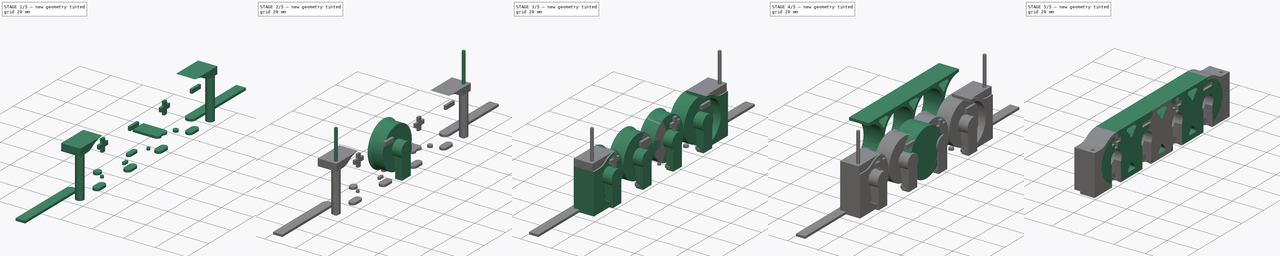
[diagram: build sequence overview — one tinted view per stage of 5, left to right]
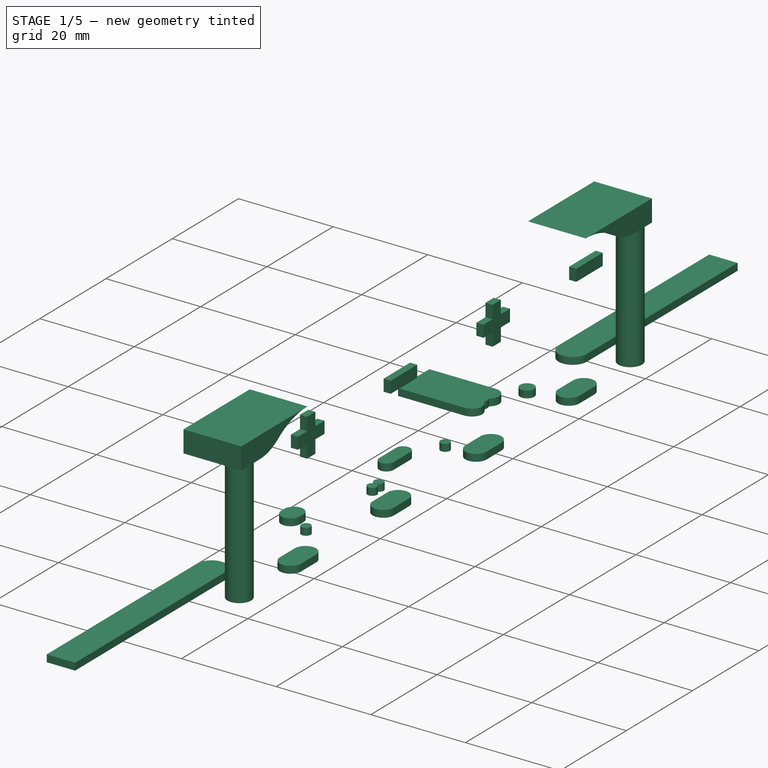
[diagram: stage 1 of 5 — iso view after this stage's code; geometry added in this stage tinted green]
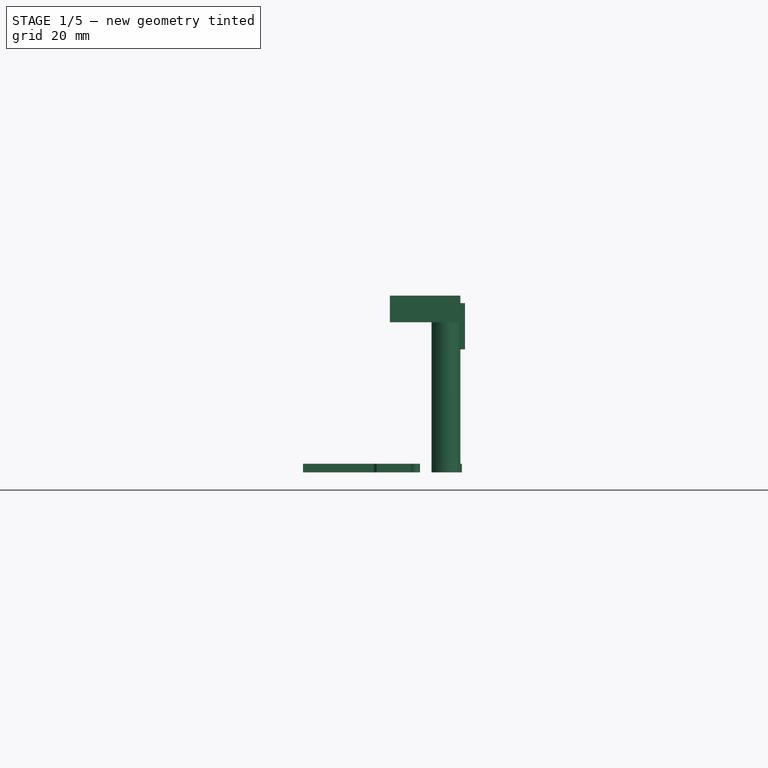
[diagram: stage 1 of 5 — front view after this stage's code; geometry added in this stage tinted green]
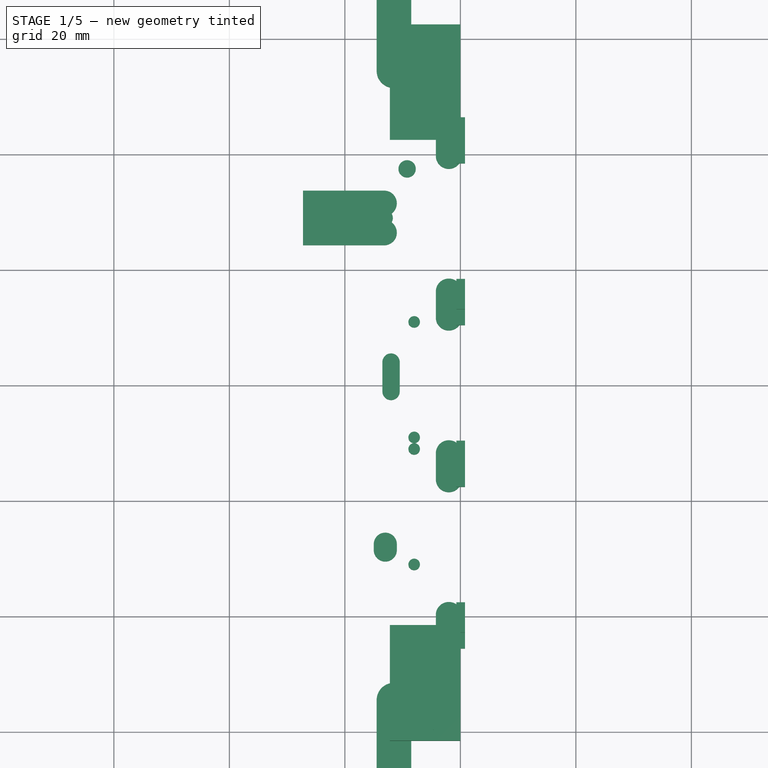
[diagram: stage 1 of 5 — top view after this stage's code; geometry added in this stage tinted green]
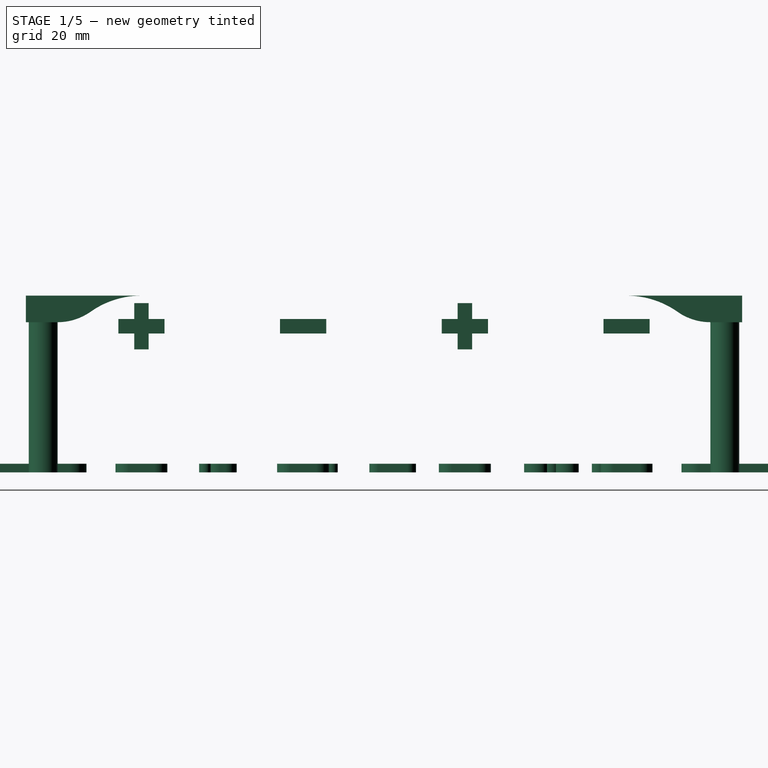
[diagram: stage 1 of 5 — right view after this stage's code; geometry added in this stage tinted green]
FCSTD DOCUMENT  (FreeCAD 1.0R39109 (Git))
Label: Battery_Holder
License: All rights reserved
LicenseURL: http://en.wikipedia.org/wiki/All_rights_reserved
objects: Sketcher::SketchObject×10, Part::Extrusion×8, PartDesign::FeatureBase×3, PartDesign::LinearPattern×3, PartDesign::Body×3, Part::MultiFuse×3, Part::Revolution×2, Spreadsheet::Sheet×1, Part::Cut×1
note: 49 computed .brp shape members not serialized (recipe doc carries the construction recipe); baked Part::Feature solids carry a one-line shape summary decoded from their .brp

FEATURE [Sketcher::SketchObject] Sketch006  label="Mount_stud_Sketch"
  ArcFitTolerance = 1e-06
  FullyConstrained = true
  MakeInternals = false
  expr: Constraints[0] = <<Param>>.Holder_mount_width / 2
  expr: Constraints[1] = <<Param>>.Holder_mount_distance / 2
  expr: Constraints[3] = <<Param>>.Holder_mount_hole / 2 + <<Param>>.Holder_mount_stud_wall
  sketch-geometry (2):
    g0: Circle CenterX=37.5 CenterY=59 CenterZ=0 NormalX=0 NormalY=0 NormalZ=1 AngleXU=0 Radius=2.5
    g1: Circle CenterX=37.5 CenterY=-59 CenterZ=0 NormalX=0 NormalY=0 NormalZ=1 AngleXU=0 Radius=2.5
  constraints (5):
    c: DistanceX(g-1,g0) = 37.5
    c: DistanceY(g-1,g0) = 59
    c: Equal(g0,g1)
    c: Radius(g0) = 2.5
    c: Symmetric(g0,g1,g-1)
FEATURE [Part::Extrusion] Extrude004  label="Mount_stud_Extrude"
  Base = -> Sketch006
  Dir = (0,0,1)
  DirMode = 2
  FaceMakerClass = Part::FaceMakerBullseye
  FaceMakerMode = 3
  LengthFwd = 30.6
  LengthRev = 0
  Solid = true
  Symmetric = false
  expr: LengthFwd = <<Param>>.Cell_standoff + <<Param>>.Cell_diameter + <<Param>>.Cell_tolerance_radius + <<Param>>.Holder_wall_radius
FEATURE [Sketcher::SketchObject] Sketch007  label="Mount_stud_cutout_Sketch"
  ArcFitTolerance = 1e-06
  FullyConstrained = true
  MakeInternals = false
  Placement = pos=(0,0,0) rot=(0.57735,0.57735,0.57735;2.0944rad)
  expr: Constraints[16] = <<Param>>.Cell_standoff + <<Param>>.Cell_diameter / 2
  expr: Constraints[17] = (<<Param>>.Cell_nof - 1) / 2 * (<<Param>>.Cell_diameter + <<Param>>.Cell_spacing)
  expr: Constraints[18] = <<Param>>.Cell_standoff + <<Param>>.Cell_diameter + <<Param>>.Cell_tolerance_radius
  expr: Constraints[19] = <<Param>>.Cell_standoff + <<Param>>.Cell_diameter + <<Param>>.Cell_tolerance_radius + <<Param>>.Holder_wall_radius
  expr: Constraints[38] = (<<Param>>.Cell_nof - 1) / 2 * (<<Param>>.Cell_diameter + <<Param>>.Cell_spacing)
  expr: Constraints[39] = <<Param>>.Cell_standoff + <<Param>>.Cell_diameter / 2
  expr: Constraints[40] = <<Param>>.Cell_standoff + <<Param>>.Cell_diameter + <<Param>>.Cell_tolerance_radius
  expr: Constraints[41] = <<Param>>.Cell_standoff + <<Param>>.Cell_diameter + <<Param>>.Cell_tolerance_radius + <<Param>>.Holder_wall_radius
  expr: Constraints[66] = <<Param>>.Holder_mount_distance / 2 + <<Param>>.Holder_mount_hole / 2 + <<Param>>.Holder_mount_wall
  expr: Constraints[67] = <<Param>>.Holder_mount_distance / 2 + <<Param>>.Holder_mount_hole / 2 + <<Param>>.Holder_mount_wall
  expr: Constraints[68] = <<Param>>.Holder_mount_height
  expr: Constraints[69] = <<Param>>.Holder_mount_height
  expr: Constraints[73] = <<Param>>.Holder_mount_distance / 2
  expr: Constraints[77] = <<Param>>.Holder_mount_distance / 2
  expr: Constraints[78] = <<Param>>.Holder_mount_distance / 2 - <<Param>>.Holder_mount_hole / 2 - <<Param>>.Holder_mount_stud_wall
  expr: Constraints[79] = <<Param>>.Holder_mount_distance / 2 - <<Param>>.Holder_mount_hole / 2 - <<Param>>.Holder_mount_stud_wall
  sketch-geometry (32):
    g0: ArcOfCircle [constr] CenterX=-42 CenterY=15.3 CenterZ=0 NormalX=0 NormalY=0 NormalZ=1 AngleXU=0 Radius=13.5 StartAngle=1.5708 EndAngle=4.71239
    g1: ArcOfCircle CenterX=-42 CenterY=15.3 CenterZ=0 NormalX=0 NormalY=0 NormalZ=1 AngleXU=0 Radius=15.3 StartAngle=1.5708 EndAngle=2.18519
    g2: LineSegment [constr] StartX=-42 StartY=30.6 StartZ=0 EndX=-42 EndY=28.8 EndZ=0
    g3: LineSegment [constr] StartX=-42 StartY=1.8 StartZ=0 EndX=-42 EndY=0 EndZ=0
    g4: LineSegment [constr] StartX=-42 StartY=0 StartZ=0 EndX=-62 EndY=0 EndZ=0
    g5: LineSegment [constr] StartX=-42 StartY=28.8 StartZ=0 EndX=-42 EndY=15.3 EndZ=0
    g6: LineSegment [constr] StartX=-42 StartY=15.3 StartZ=0 EndX=-50.8199 EndY=27.802 EndZ=0
    g7: LineSegment [constr] StartX=-42 StartY=15.3 StartZ=0 EndX=-42 EndY=1.8 EndZ=0
    g8: ArcOfCircle CenterX=42 CenterY=15.3 CenterZ=0 NormalX=0 NormalY=0 NormalZ=1 AngleXU=0 Radius=15.3 StartAngle=0.956399 EndAngle=1.5708
    g9: ArcOfCircle [constr] CenterX=42 CenterY=15.3 CenterZ=0 NormalX=0 NormalY=0 NormalZ=1 AngleXU=0 Radius=13.5 StartAngle=4.71239 EndAngle=7.85398
    g10: LineSegment [constr] StartX=42 StartY=30.6 StartZ=0 EndX=42 EndY=28.8 EndZ=0
    g11: LineSegment [constr] StartX=42 StartY=1.8 StartZ=0 EndX=42 EndY=0 EndZ=0
    g12: LineSegment [constr] StartX=42 StartY=0 StartZ=0 EndX=62 EndY=0 EndZ=0
    g13: LineSegment [constr] StartX=42 StartY=28.8 StartZ=0 EndX=42 EndY=15.3 EndZ=0
    g14: LineSegment [constr] StartX=42 StartY=1.8 StartZ=0 EndX=42 EndY=15.3 EndZ=0
    g15: LineSegment [constr] StartX=42 StartY=15.3 StartZ=0 EndX=50.8199 EndY=27.802 EndZ=0
    g16: LineSegment [constr] StartX=-62 StartY=0 StartZ=0 EndX=-62 EndY=26 EndZ=0
    g17: LineSegment StartX=-62 StartY=26 StartZ=0 EndX=-56.5 EndY=26 EndZ=0
    g18: ArcOfCircle CenterX=-56.5 CenterY=35.8533 CenterZ=0 NormalX=0 NormalY=0 NormalZ=1 AngleXU=0 Radius=9.85326 StartAngle=4.71239 EndAngle=5.32679
    g19: LineSegment [constr] StartX=-56.5 StartY=35.8533 StartZ=0 EndX=-56.5 EndY=26 EndZ=0
    g20: LineSegment [constr] StartX=-56.5 StartY=35.8533 StartZ=0 EndX=-50.8199 EndY=27.802 EndZ=0
    g21: LineSegment [constr] StartX=62 StartY=0 StartZ=0 EndX=62 EndY=26 EndZ=0
    g22: LineSegment StartX=62 StartY=26 StartZ=0 EndX=56.5 EndY=26 EndZ=0
    g23: ArcOfCircle CenterX=56.5 CenterY=35.8533 CenterZ=0 NormalX=0 NormalY=0 NormalZ=1 AngleXU=0 Radius=9.85326 StartAngle=4.09799 EndAngle=4.71239
    g24: LineSegment [constr] StartX=56.5 StartY=35.8533 StartZ=0 EndX=56.5 EndY=26 EndZ=0
    g25: LineSegment [constr] StartX=56.5 StartY=35.8533 StartZ=0 EndX=50.8199 EndY=27.802 EndZ=0
    g26: LineSegment [constr] StartX=-59 StartY=26 StartZ=0 EndX=-59 EndY=0 EndZ=0
    g27: LineSegment [constr] StartX=59 StartY=26 StartZ=0 EndX=59 EndY=0 EndZ=0
    g28: LineSegment StartX=-62 StartY=26 StartZ=0 EndX=-62 EndY=30.6 EndZ=0
    g29: LineSegment StartX=-62 StartY=30.6 StartZ=0 EndX=-42 EndY=30.6 EndZ=0
    g30: LineSegment StartX=62 StartY=26 StartZ=0 EndX=62 EndY=30.6 EndZ=0
    g31: LineSegment StartX=42 StartY=30.6 StartZ=0 EndX=62 EndY=30.6 EndZ=0
  constraints (89):
    c: Coincident(g2,g1)
    c: Coincident(g2,g0)
    c: Vertical(g2)
    c: Coincident(g3,g0)
    c: Horizontal(g4)
    c: Coincident(g1,g0)
    c: Coincident(g5,g0)
    c: Coincident(g5,g0)
    c: Coincident(g6,g0)
    c: Coincident(g6,g1)
    c: Coincident(g7,g0)
    c: Coincident(g7,g0)
    c: Coincident(g3,g4)
    c: Vertical(g3)
    c: Vertical(g7)
    c: Vertical(g5)
    c: Distance(g0,g-1) = 15.3
    c: Distance(g0,g-2) = 42
    c: Distance(g0,g-1) = 28.8
    c: Distance(g1,g-1) = 30.6
    c: PointOnObject(g3,g-1)
    c: Coincident(g9,g8)
    c: Coincident(g10,g8)
    c: Coincident(g10,g9)
    c: Vertical(g10)
    c: Coincident(g11,g9)
    c: Vertical(g11)
    c: Coincident(g12,g11)
    c: Horizontal(g12)
    c: Coincident(g13,g9)
    c: Coincident(g13,g8)
    c: Vertical(g13)
    c: Coincident(g14,g9)
    c: Coincident(g14,g8)
    c: Coincident(g15,g8)
    c: Coincident(g15,g8)
    c: Vertical(g14)
    c: PointOnObject(g12,g-1)
    c: Distance(g8,g-2) = 42
    c: Distance(g8,g-1) = 15.3
    c: Distance(g9,g-1) = 28.8
    c: Distance(g8,g-1) = 30.6
    c: Coincident(g16,g4)
    c: Vertical(g16)
    c: Coincident(g17,g16)
    c: Coincident(g18,g17)
    c: Coincident(g18,g1)
    c: Coincident(g19,g18)
    c: Coincident(g20,g18)
    c: Coincident(g20,g1)
    c: Parallel(g20,g6)
    c: Perpendicular(g17,g19)
    c: Horizontal(g17)
    c: Coincident(g19,g17)
    c: Coincident(g21,g12)
    c: Vertical(g21)
    c: Coincident(g22,g21)
    c: Horizontal(g22)
    c: Coincident(g23,g22)
    c: Coincident(g23,g8)
    c: Coincident(g24,g23)
    c: Coincident(g24,g22)
    c: Coincident(g25,g23)
    c: Coincident(g25,g8)
    c: Parallel(g25,g15)
    c: Perpendicular(g22,g24)
    c: DistanceX(g4,g-1) = 62
    c: DistanceX(g-1,g12) = 62
    c: DistanceY(g-1,g16) = 26
    c: DistanceY(g-1,g21) = 26
    c: PointOnObject(g26,g4)
    c: Vertical(g26)
    c: PointOnObject(g26,g17)
    c: DistanceX(g26,g-1) = 59
    c: PointOnObject(g27,g22)
    c: PointOnObject(g27,g12)
    c: Vertical(g27)
    c: DistanceX(g-1,g27) = 59
    c: DistanceX(g17,g-1) = 56.5
    c: DistanceX(g-1,g22) = 56.5
    c: Coincident(g28,g16)
    c: Vertical(g28)
    c: Coincident(g29,g28)
    c: Coincident(g29,g1)
    c: Horizontal(g29)
    c: Coincident(g30,g21)
    c: Vertical(g30)
    c: Tangent(g31,g8) = 1.5708
    c: Coincident(g31,g30)
FEATURE [Part::Extrusion] Extrude005  label="Mount_stud_cutout_Extrude"
  Base = -> Sketch007
  Dir = (1,0,0)
  DirMode = 2
  FaceMakerClass = Part::FaceMakerBullseye
  FaceMakerMode = 3
  LengthFwd = 12.2
  LengthRev = 0
  Placement = pos=(27.8,0,0) rot=(0,0,1;0rad)
  Solid = true
  Symmetric = false
  expr: .Placement.Base.x = <<Param>>.Cell_length / 2 + Spreadsheet.Cell_tolerance_length - Spreadsheet.Holder_cell_length
  expr: LengthFwd = <<Param>>.Holder_mount_width / 2 - <<Param>>.Cell_length / 2 - Spreadsheet.Cell_tolerance_length + Spreadsheet.Holder_cell_length + <<Param>>.Holder_mount_hole / 2 + <<Param>>.Holder_mount_stud_wall
FEATURE [Sketcher::SketchObject] Sketch008  label="Component_Cutout_Sketch"
  ArcFitTolerance = 1e-06
  FullyConstrained = false
  MakeInternals = false
  sketch-geometry (91):
    g0: ArcOfCircle CenterX=28 CenterY=-1.04 CenterZ=0 NormalX=0 NormalY=0 NormalZ=1 AngleXU=0 Radius=1.5 StartAngle=3.14159 EndAngle=6.28319
    g1: ArcOfCircle CenterX=28 CenterY=4.04 CenterZ=0 NormalX=0 NormalY=0 NormalZ=1 AngleXU=0 Radius=1.5 StartAngle=0 EndAngle=3.14159
    g2: LineSegment StartX=29.5 StartY=4.04 StartZ=0 EndX=29.5 EndY=-1.04 EndZ=0
    g3: LineSegment StartX=26.5 StartY=4.04 StartZ=0 EndX=26.5 EndY=-1.04 EndZ=0
    g4: LineSegment [constr] StartX=26.5 StartY=4.04 StartZ=0 EndX=28 EndY=4.04 EndZ=0
    g5: LineSegment [constr] StartX=28 StartY=4.04 StartZ=0 EndX=29.5 EndY=4.04 EndZ=0
    g6: LineSegment [constr] StartX=29.5 StartY=-1.04 StartZ=0 EndX=28 EndY=-1.04 EndZ=0
    g7: LineSegment [constr] StartX=28 StartY=-1.04 StartZ=0 EndX=26.5 EndY=-1.04 EndZ=0
    g8: LineSegment [constr] StartX=28 StartY=4.04 StartZ=0 EndX=28 EndY=1.5 EndZ=0
    g9: LineSegment [constr] StartX=28 StartY=1.5 StartZ=0 EndX=28 EndY=-1.04 EndZ=0
    g10: Circle CenterX=30.78 CenterY=37.5 CenterZ=0 NormalX=0 NormalY=0 NormalZ=1 AngleXU=0 Radius=1.5
    g11: Circle CenterX=32 CenterY=-31 CenterZ=0 NormalX=0 NormalY=0 NormalZ=1 AngleXU=0 Radius=1
    g12: Circle CenterX=32 CenterY=-11 CenterZ=0 NormalX=0 NormalY=0 NormalZ=1 AngleXU=0 Radius=1
    g13: Circle CenterX=32 CenterY=-9 CenterZ=0 NormalX=0 NormalY=0 NormalZ=1 AngleXU=0 Radius=1
    g14: Circle CenterX=32 CenterY=11 CenterZ=0 NormalX=0 NormalY=0 NormalZ=1 AngleXU=0 Radius=1
    g15: LineSegment [constr] StartX=32 StartY=-31 StartZ=0 EndX=32 EndY=-11 EndZ=0
    g16: LineSegment [constr] StartX=32 StartY=-9 StartZ=0 EndX=32 EndY=11 EndZ=0
    g17: LineSegment [constr] StartX=32 StartY=-11 StartZ=0 EndX=32 EndY=-9 EndZ=0
    g18: ArcOfCircle CenterX=38 CenterY=44.25 CenterZ=0 NormalX=0 NormalY=0 NormalZ=1 AngleXU=0 Radius=2.25 StartAngle=0 EndAngle=3.14159
    g19: ArcOfCircle CenterX=38 CenterY=39.75 CenterZ=0 NormalX=0 NormalY=0 NormalZ=1 AngleXU=0 Radius=2.25 StartAngle=3.14159 EndAngle=6.28319
    g20: ArcOfCircle CenterX=38 CenterY=16.25 CenterZ=0 NormalX=0 NormalY=0 NormalZ=1 AngleXU=0 Radius=2.25 StartAngle=0 EndAngle=3.14159
    g21: ArcOfCircle CenterX=38 CenterY=11.75 CenterZ=0 NormalX=0 NormalY=0 NormalZ=1 AngleXU=0 Radius=2.25 StartAngle=3.14159 EndAngle=6.28319
    g22: ArcOfCircle CenterX=38 CenterY=-11.75 CenterZ=0 NormalX=0 NormalY=0 NormalZ=1 AngleXU=0 Radius=2.25 StartAngle=0 EndAngle=3.14159
    g23: ArcOfCircle CenterX=38 CenterY=-16.25 CenterZ=0 NormalX=0 NormalY=0 NormalZ=1 AngleXU=0 Radius=2.25 StartAngle=3.14159 EndAngle=6.28319
    g24: ArcOfCircle CenterX=38 CenterY=-39.75 CenterZ=0 NormalX=0 NormalY=0 NormalZ=1 AngleXU=0 Radius=2.25 StartAngle=0 EndAngle=3.14159
    g25: ArcOfCircle CenterX=38 CenterY=-44.25 CenterZ=0 NormalX=0 NormalY=0 NormalZ=1 AngleXU=0 Radius=2.25 StartAngle=3.14159 EndAngle=6.28319
    g26: LineSegment StartX=35.75 StartY=44.25 StartZ=0 EndX=35.75 EndY=39.75 EndZ=0
    g27: LineSegment StartX=40.25 StartY=44.25 StartZ=0 EndX=40.25 EndY=39.75 EndZ=0
    g28: LineSegment StartX=40.25 StartY=16.25 StartZ=0 EndX=40.25 EndY=11.75 EndZ=0
    g29: LineSegment StartX=35.75 StartY=16.25 StartZ=0 EndX=35.75 EndY=11.75 EndZ=0
    g30: LineSegment StartX=35.75 StartY=-11.75 StartZ=0 EndX=35.75 EndY=-16.25 EndZ=0
    g31: LineSegment StartX=40.25 StartY=-11.75 StartZ=0 EndX=40.25 EndY=-16.25 EndZ=0
    g32: LineSegment StartX=35.75 StartY=-39.75 StartZ=0 EndX=35.75 EndY=-44.25 EndZ=0
    g33: LineSegment StartX=40.25 StartY=-39.75 StartZ=0 EndX=40.25 EndY=-44.25 EndZ=0
    g34: LineSegment [constr] StartX=38 StartY=44.25 StartZ=0 EndX=38 EndY=39.75 EndZ=0
    g35: LineSegment [constr] StartX=38 StartY=39.75 StartZ=0 EndX=38 EndY=16.25 EndZ=0
    g36: LineSegment [constr] StartX=38 StartY=16.25 StartZ=0 EndX=38 EndY=11.75 EndZ=0
    g37: LineSegment [constr] StartX=35.75 StartY=44.25 StartZ=0 EndX=38 EndY=44.25 EndZ=0
    g38: LineSegment [constr] StartX=38 StartY=44.25 StartZ=0 EndX=40.25 EndY=44.25 EndZ=0
    g39: LineSegment [constr] StartX=35.75 StartY=39.75 StartZ=0 EndX=38 EndY=39.75 EndZ=0
    g40: LineSegment [constr] StartX=38 StartY=39.75 StartZ=0 EndX=40.25 EndY=39.75 EndZ=0
    g41: LineSegment [constr] StartX=35.75 StartY=11.75 StartZ=0 EndX=38 EndY=11.75 EndZ=0
    g42: LineSegment [constr] StartX=38 StartY=11.75 StartZ=0 EndX=40.25 EndY=11.75 EndZ=0
    g43: LineSegment [constr] StartX=40.25 StartY=16.25 StartZ=0 EndX=38 EndY=16.25 EndZ=0
    g44: LineSegment [constr] StartX=38 StartY=16.25 StartZ=0 EndX=35.75 EndY=16.25 EndZ=0
    g45: LineSegment [constr] StartX=35.75 StartY=-44.25 StartZ=0 EndX=38 EndY=-44.25 EndZ=0
    g46: LineSegment [constr] StartX=35.75 StartY=-39.75 StartZ=0 EndX=38 EndY=-39.75 EndZ=0
    g47: LineSegment [constr] StartX=35.75 StartY=-11.75 StartZ=0 EndX=38 EndY=-11.75 EndZ=0
    g48: LineSegment [constr] StartX=35.75 StartY=-16.25 StartZ=0 EndX=38 EndY=-16.25 EndZ=0
    g49: LineSegment [constr] StartX=40.25 StartY=16.25 StartZ=0 EndX=38 EndY=14 EndZ=0
    g50: LineSegment [constr] StartX=40.25 StartY=11.75 StartZ=0 EndX=38 EndY=14 EndZ=0
    g51: LineSegment [constr] StartX=35.75 StartY=11.75 StartZ=0 EndX=38 EndY=14 EndZ=0
    g52: LineSegment [constr] StartX=35.75 StartY=16.25 StartZ=0 EndX=38 EndY=14 EndZ=0
    g53: LineSegment [constr] StartX=40.25 StartY=39.75 StartZ=0 EndX=38 EndY=42 EndZ=0
    g54: LineSegment [constr] StartX=35.75 StartY=39.75 StartZ=0 EndX=38 EndY=42 EndZ=0
    g55: LineSegment [constr] StartX=35.75 StartY=44.25 StartZ=0 EndX=38 EndY=42 EndZ=0
    g56: LineSegment [constr] StartX=40.25 StartY=44.25 StartZ=0 EndX=38 EndY=42 EndZ=0
    g57: ArcOfCircle CenterX=28.5 CenterY=54.5 CenterZ=0 NormalX=0 NormalY=0 NormalZ=1 AngleXU=0 Radius=3 StartAngle=3.14159 EndAngle=6.28319
    g58: LineSegment StartX=25.5 StartY=54.5 StartZ=0 EndX=25.5 EndY=100 EndZ=0
    g59: LineSegment StartX=31.5 StartY=54.5 StartZ=0 EndX=31.5 EndY=100 EndZ=0
    g60: LineSegment StartX=25.5 StartY=100 StartZ=0 EndX=31.5 EndY=100 EndZ=0
    g61: LineSegment [constr] StartX=25.5 StartY=54.5 StartZ=0 EndX=28.5 EndY=54.5 EndZ=0
    g62: LineSegment [constr] StartX=28.5 StartY=54.5 StartZ=0 EndX=31.5 EndY=54.5 EndZ=0
    g63: ArcOfCircle CenterX=28.5 CenterY=-54.5 CenterZ=0 NormalX=0 NormalY=0 NormalZ=1 AngleXU=0 Radius=3 StartAngle=0 EndAngle=3.14159
    g64: LineSegment StartX=25.5 StartY=-54.5 StartZ=0 EndX=25.5 EndY=-100 EndZ=0
    g65: LineSegment StartX=25.5 StartY=-100 StartZ=0 EndX=31.5 EndY=-100 EndZ=0
    g66: LineSegment StartX=31.5 StartY=-100 StartZ=0 EndX=31.5 EndY=-54.5 EndZ=0
    g67: LineSegment [constr] StartX=25.5 StartY=-54.5 StartZ=0 EndX=28.5 EndY=-54.5 EndZ=0
    g68: LineSegment [constr] StartX=31.5 StartY=-54.5 StartZ=0 EndX=28.5 EndY=-54.5 EndZ=0
    g69: LineSegment [constr] StartX=28.5 StartY=54.5 StartZ=0 EndX=28.5 EndY=0 EndZ=0
    g70: LineSegment [constr] StartX=28.5 StartY=0 StartZ=0 EndX=28.5 EndY=-54.5 EndZ=0
    g71: ArcOfCircle CenterX=27 CenterY=-27.5 CenterZ=0 NormalX=0 NormalY=0 NormalZ=1 AngleXU=0 Radius=2 StartAngle=0 EndAngle=3.14159
    g72: ArcOfCircle CenterX=27 CenterY=-28.5 CenterZ=0 NormalX=0 NormalY=0 NormalZ=1 AngleXU=0 Radius=2 StartAngle=3.14159 EndAngle=6.28319
    g73: LineSegment StartX=25 StartY=-27.5 StartZ=0 EndX=25 EndY=-28.5 EndZ=0
    g74: LineSegment StartX=29 StartY=-27.5 StartZ=0 EndX=29 EndY=-28.5 EndZ=0
    g75: LineSegment [constr] StartX=27 StartY=-27.5 StartZ=0 EndX=27 EndY=-28 EndZ=0
    g76: LineSegment [constr] StartX=27 StartY=-28 StartZ=0 EndX=27 EndY=-28.5 EndZ=0
    g77: LineSegment [constr] StartX=25 StartY=-27.5 StartZ=0 EndX=27 EndY=-27.5 EndZ=0
    g78: LineSegment [constr] StartX=27 StartY=-27.5 StartZ=0 EndX=29 EndY=-27.5 EndZ=0
    g79: LineSegment [constr] StartX=27 StartY=-28.5 StartZ=0 EndX=25 EndY=-28.5 EndZ=0
    g80: LineSegment [constr] StartX=27 StartY=-28.5 StartZ=0 EndX=29 EndY=-28.5 EndZ=0
    g81: ArcOfCircle CenterX=26.81 CenterY=31.54 CenterZ=0 NormalX=0 NormalY=0 NormalZ=1 AngleXU=0 Radius=2.1875 StartAngle=5.33917 EndAngle=7.85398
    g82: ArcOfCircle CenterX=26.81 CenterY=26.46 CenterZ=0 NormalX=0 NormalY=0 NormalZ=1 AngleXU=0 Radius=2.1875 StartAngle=4.71239 EndAngle=7.2272
    g83: ArcOfCircle CenterX=26.81 CenterY=29 CenterZ=0 NormalX=0 NormalY=0 NormalZ=1 AngleXU=0 Radius=1.4955 StartAngle=5.74365 EndAngle=6.82273
    g84: LineSegment [constr] StartX=26.81 StartY=31.54 StartZ=0 EndX=26.81 EndY=29 EndZ=0
    g85: LineSegment [constr] StartX=26.81 StartY=29 StartZ=0 EndX=26.81 EndY=26.46 EndZ=0
    g86: LineSegment [constr] StartX=26.81 StartY=33.7275 StartZ=0 EndX=26.81 EndY=31.54 EndZ=0
    g87: LineSegment [constr] StartX=26.81 StartY=26.46 StartZ=0 EndX=26.81 EndY=24.2725 EndZ=0
    g88: LineSegment StartX=26.81 StartY=33.7275 StartZ=0 EndX=12.7531 EndY=33.7275 EndZ=0
    g89: LineSegment StartX=12.7531 StartY=33.7275 StartZ=0 EndX=12.7531 EndY=24.2725 EndZ=0
    g90: LineSegment StartX=12.7531 StartY=24.2725 StartZ=0 EndX=26.81 EndY=24.2725 EndZ=0
  constraints (238):
    c: Diameter(g1) = 3
    c: Diameter(g0) = 3
    c: Coincident(g2,g1)
    c: Coincident(g2,g0)
    c: Coincident(g3,g1)
    c: Coincident(g3,g0)
    c: Coincident(g4,g1)
    c: Coincident(g4,g1)
    c: Coincident(g5,g1)
    c: Coincident(g5,g1)
    c: Coincident(g6,g0)
    c: Coincident(g6,g0)
    c: Horizontal(g6)
    c: Coincident(g7,g0)
    c: Coincident(g7,g0)
    c: Coincident(g8,g1)
    c: Coincident(g9,g8)
    c: Coincident(g9,g0)
    c: Perpendicular(g2,g5)
    c: Perpendicular(g3,g4)
    c: Perpendicular(g3,g7)
    c: Perpendicular(g2,g6)
    c: Equal(g8,g9)
    c: Parallel(g8,g9)
    c: DistanceY(g8,g8) = 2.54
    c: DistanceX(g-1,g8) = 28
    c: Diameter(g10) = 3
    c: DistanceX(g-1,g10) = 30.78
    c: Coincident(g15,g11)
    c: Coincident(g15,g12)
    c: Vertical(g15)
    c: Coincident(g16,g13)
    c: Coincident(g16,g14)
    c: Vertical(g16)
    c: Equal(g12,g11)
    c: Equal(g12,g13)
    c: Equal(g12,g14)
    c: Diameter(g12) = 2
    c: DistanceY(g15,g15) = 20
    c: Distance(g16,g16) = 20
    c: Coincident(g17,g12)
    c: Coincident(g17,g13)
    c: Vertical(g17)
    c: DistanceY(g11,g-1) = 31
    c: DistanceX(g-1,g14) = 32
    c: Coincident(g26,g18)
    c: Coincident(g26,g19)
    c: Coincident(g27,g18)
    c: Coincident(g27,g19)
    c: Coincident(g28,g20)
    c: Coincident(g28,g21)
    c: Coincident(g29,g20)
    c: Coincident(g29,g21)
    c: Coincident(g30,g22)
    c: Coincident(g30,g23)
    c: Coincident(g31,g22)
    c: Coincident(g31,g23)
    c: Coincident(g32,g24)
    c: Coincident(g32,g25)
    c: Coincident(g33,g24)
    c: Coincident(g33,g25)
    c: Coincident(g34,g18)
    c: Coincident(g34,g19)
    c: Coincident(g35,g19)
    c: Coincident(g35,g20)
    c: Vertical(g35)
    c: Coincident(g36,g20)
    c: Coincident(g36,g21)
    c: Equal(g18,g19)
    c: Equal(g18,g20)
    c: Equal(g18,g21)
    c: Symmetric(g21,g22,g-1)
    c: Symmetric(g20,g23,g-1)
    c: Symmetric(g19,g24,g-1)
    c: Symmetric(g18,g25,g-1)
    c: Symmetric(g21,g22,g-1)
    c: Symmetric(g20,g23,g-1)
    c: Symmetric(g24,g19,g-1)
    c: Symmetric(g18,g25,g-1)
    c: Vertical(g34)
    c: Vertical(g36)
    c: DistanceX(g-1,g18) = 38
    c: Coincident(g37,g18)
    c: Coincident(g37,g18)
    c: Horizontal(g37)
    c: Coincident(g38,g18)
    c: Coincident(g38,g18)
    c: Coincident(g39,g19)
    c: Coincident(g39,g19)
    c: Horizontal(g39)
    c: Coincident(g40,g19)
    c: Coincident(g40,g19)
    c: Coincident(g41,g21)
    c: Coincident(g41,g21)
    c: Coincident(g42,g21)
    c: Coincident(g42,g21)
    c: Coincident(g43,g20)
    c: Coincident(g43,g20)
    c: Coincident(g44,g20)
    c: Coincident(g44,g20)
    c: Coincident(g45,g25)
    c: Coincident(g45,g25)
    c: Horizontal(g45)
    c: Coincident(g46,g24)
    c: Coincident(g46,g24)
    c: Horizontal(g46)
    c: Coincident(g47,g22)
    c: Coincident(g47,g22)
    c: Coincident(g48,g23)
    c: Coincident(g48,g23)
    c: Horizontal(g48)
    c: Horizontal(g47)
    c: Horizontal(g43)
    c: Horizontal(g44)
    c: Horizontal(g41)
    c: Horizontal(g42)
    c: Horizontal(g40)
    c: Horizontal(g38)
    c: Diameter(g18) = 4.5
    c: DistanceY(g34,g34) = 4.5
    c: Equal(g34,g36)
    c: Coincident(g49,g20)
    c: Coincident(g50,g21)
    c: Coincident(g50,g49)
    c: Coincident(g51,g21)
    c: Coincident(g51,g49)
    c: Coincident(g52,g20)
    c: Coincident(g52,g49)
    c: Coincident(g53,g19)
    c: Coincident(g54,g19)
    c: Coincident(g54,g53)
    c: Coincident(g55,g18)
    c: Coincident(g55,g53)
    c: Coincident(g56,g18)
    c: Coincident(g56,g53)
    c: Equal(g53,g56)
    c: Equal(g56,g55)
    c: Equal(g50,g49)
    c: Equal(g49,g52)
    c: DistanceY(g-1,g49) = 14
    c: DistanceY(g-1,g53) = 42
    c: DistanceY(g-1,g8) = 1.5
    c: DistanceY(g13,g-1) = 9
    c: DistanceY(g-1,g10) = 37.5
    c: Coincident(g58,g57)
    c: Vertical(g58)
    c: Coincident(g59,g57)
    c: Vertical(g59)
    c: Coincident(g60,g58)
    c: Coincident(g60,g59)
    c: Horizontal(g60)
    c: Coincident(g61,g57)
    c: Coincident(g61,g57)
    c: Horizontal(g61)
    c: Coincident(g62,g57)
    c: Coincident(g62,g57)
    c: Horizontal(g62)
    c: DistanceY(g-1,g59) = 100
    c: Coincident(g64,g63)
    c: Vertical(g64)
    c: Coincident(g65,g64)
    c: Horizontal(g65)
    c: Coincident(g66,g65)
    c: Coincident(g66,g63)
    c: Coincident(g67,g63)
    c: Coincident(g67,g63)
    c: Coincident(g68,g63)
    c: Coincident(g68,g63)
    c: Horizontal(g68)
    c: Horizontal(g67)
    c: Vertical(g66)
    c: Equal(g57,g63)
    c: DistanceX(g-1,g57) = 28.5
    c: Coincident(g69,g57)
    c: PointOnObject(g69,g-1)
    c: Coincident(g70,g69)
    c: Coincident(g70,g63)
    c: Equal(g69,g70)
    c: Vertical(g69)
    c: Vertical(g70)
    c: Diameter(g57) = 6
    c: DistanceY(g-1,g57) = 54.5
    c: Equal(g59,g66)
    c: Coincident(g73,g71)
    c: Coincident(g73,g72)
    c: Coincident(g74,g71)
    c: Coincident(g74,g72)
    c: Coincident(g75,g71)
    c: Coincident(g76,g75)
    c: Coincident(g76,g72)
    c: Equal(g75,g76)
    c: Parallel(g75,g76)
    c: Coincident(g77,g71)
    c: Coincident(g77,g71)
    c: Coincident(g78,g71)
    c: Coincident(g78,g71)
    c: Coincident(g79,g72)
    c: Coincident(g79,g72)
    c: Coincident(g80,g72)
    c: Coincident(g80,g72)
    c: Horizontal(g80)
    c: Horizontal(g79)
    c: Horizontal(g78)
    c: Horizontal(g77)
    c: Diameter(g71) = 4
    c: Equal(g71,g72)
    c: Vertical(g75)
    c: DistanceY(g73,g73) = 1
    c: DistanceY(g75,g-1) = 28
    c: DistanceX(g-1,g75) = 27
    c: Coincident(g83,g81)
    c: Coincident(g83,g82)
    c: Diameter(g83) = 2.991
    c: Diameter(g81) = 4.375
    c: Equal(g81,g82)
    c: Coincident(g84,g81)
    c: Coincident(g84,g83)
    c: Coincident(g85,g83)
    c: Coincident(g85,g82)
    c: Vertical(g84)
    c: Vertical(g85)
    c: Equal(g84,g85)
    c: Coincident(g86,g81)
    c: Coincident(g86,g81)
    c: Vertical(g86)
    c: Coincident(g87,g82)
    c: Coincident(g87,g82)
    c: Vertical(g87)
    c: DistanceY(g84,g84) = 2.54
    c: DistanceX(g-1,g83) = 26.81
    c: DistanceY(g-1,g83) = 29
    c: Coincident(g88,g81)
    c: Horizontal(g88)
    c: Coincident(g89,g88)
    c: Vertical(g89)
    c: Coincident(g90,g89)
    c: Coincident(g90,g82)
    c: Horizontal(g90)
FEATURE [Part::Extrusion] Extrude006  label="Component_Cutout_Extrude"
  Base = -> Sketch008
  Dir = (0,0,1)
  DirMode = 2
  FaceMakerClass = Part::FaceMakerBullseye
  FaceMakerMode = 3
  LengthFwd = 1.5
  LengthRev = 0
  Solid = true
  Symmetric = false
FEATURE [Sketcher::SketchObject] Sketch009  label="Polarity_marker_Sketch"
  ArcFitTolerance = 1e-06
  FullyConstrained = true
  MakeInternals = false
  Placement = pos=(0,0,0) rot=(0.57735,0.57735,0.57735;2.0944rad)
  expr: Constraints[100] = <<Param>>.Pol_height
  expr: Constraints[101] = <<Param>>.Pol_width
  expr: Constraints[136] = <<Param>>.Pol_line_width
  expr: Constraints[137] = <<Param>>.Pol_line_width
  expr: Constraints[138] = <<Param>>.Pol_width
  expr: Constraints[139] = <<Param>>.Pol_width
  expr: Constraints[151] = <<Param>>.Cell_diameter + <<Param>>.Cell_spacing
  expr: Constraints[152] = (<<Param>>.Cell_diameter + <<Param>>.Cell_spacing) / 2 + <<Param>>.Pol_offset_y
  expr: Constraints[153] = <<Param>>.Cell_diameter / 2 + <<Param>>.Cell_standoff + <<Param>>.Pol_offset_z
  expr: Constraints[39] = <<Param>>.Pol_line_width
  expr: Constraints[40] = <<Param>>.Pol_height
  expr: Constraints[41] = <<Param>>.Pol_width
  expr: Constraints[99] = <<Param>>.Pol_line_width
  sketch-geometry (59):
    g0: LineSegment StartX=-43.25 StartY=29.3 StartZ=0 EndX=-43.25 EndY=26.55 EndZ=0
    g1: LineSegment StartX=-43.25 StartY=26.55 StartZ=0 EndX=-46 EndY=26.55 EndZ=0
    g2: LineSegment StartX=-46 StartY=26.55 StartZ=0 EndX=-46 EndY=24.05 EndZ=0
    g3: LineSegment StartX=-46 StartY=24.05 StartZ=0 EndX=-43.25 EndY=24.05 EndZ=0
    g4: LineSegment StartX=-43.25 StartY=24.05 StartZ=0 EndX=-43.25 EndY=21.3 EndZ=0
    g5: LineSegment StartX=-43.25 StartY=21.3 StartZ=0 EndX=-40.75 EndY=21.3 EndZ=0
    g6: LineSegment StartX=-40.75 StartY=21.3 StartZ=0 EndX=-40.75 EndY=24.05 EndZ=0
    g7: LineSegment StartX=-40.75 StartY=24.05 StartZ=0 EndX=-38 EndY=24.05 EndZ=0
    g8: LineSegment StartX=-38 StartY=24.05 StartZ=0 EndX=-38 EndY=26.55 EndZ=0
    g9: LineSegment StartX=-38 StartY=26.55 StartZ=0 EndX=-40.75 EndY=26.55 EndZ=0
    g10: LineSegment StartX=-40.75 StartY=26.55 StartZ=0 EndX=-40.75 EndY=29.3 EndZ=0
    g11: LineSegment StartX=-40.75 StartY=29.3 StartZ=0 EndX=-43.25 EndY=29.3 EndZ=0
    g12: LineSegment [constr] StartX=-43.25 StartY=26.55 StartZ=0 EndX=-40.75 EndY=26.55 EndZ=0
    g13: LineSegment [constr] StartX=-40.75 StartY=26.55 StartZ=0 EndX=-40.75 EndY=24.05 EndZ=0
    g14: LineSegment [constr] StartX=-40.75 StartY=24.05 StartZ=0 EndX=-43.25 EndY=24.05 EndZ=0
    g15: LineSegment [constr] StartX=-43.25 StartY=24.05 StartZ=0 EndX=-43.25 EndY=26.55 EndZ=0
    g16: LineSegment [constr] StartX=12.75 StartY=26.55 StartZ=0 EndX=12.75 EndY=24.05 EndZ=0
    g17: LineSegment [constr] StartX=12.75 StartY=24.05 StartZ=0 EndX=15.25 EndY=24.05 EndZ=0
    g18: LineSegment [constr] StartX=15.25 StartY=24.05 StartZ=0 EndX=15.25 EndY=26.55 EndZ=0
    g19: LineSegment [constr] StartX=15.25 StartY=26.55 StartZ=0 EndX=12.75 EndY=26.55 EndZ=0
    g20: LineSegment [constr] StartX=-40.75 StartY=26.55 StartZ=0 EndX=-42 EndY=25.3 EndZ=0
    g21: LineSegment [constr] StartX=-43.25 StartY=24.05 StartZ=0 EndX=-42 EndY=25.3 EndZ=0
    g22: LineSegment [constr] StartX=-43.25 StartY=26.55 StartZ=0 EndX=-42 EndY=25.3 EndZ=0
    g23: LineSegment [constr] StartX=-42 StartY=25.3 StartZ=0 EndX=-40.75 EndY=24.05 EndZ=0
    g24: LineSegment [constr] StartX=12.75 StartY=26.55 StartZ=0 EndX=14 EndY=25.3 EndZ=0
    g25: LineSegment [constr] StartX=15.25 StartY=26.55 StartZ=0 EndX=14 EndY=25.3 EndZ=0
    g26: LineSegment [constr] StartX=12.75 StartY=24.05 StartZ=0 EndX=14 EndY=25.3 EndZ=0
    g27: LineSegment [constr] StartX=15.25 StartY=24.05 StartZ=0 EndX=14 EndY=25.3 EndZ=0
    g28: LineSegment StartX=12.75 StartY=29.3 StartZ=0 EndX=12.75 EndY=26.55 EndZ=0
    g29: LineSegment StartX=12.75 StartY=26.55 StartZ=0 EndX=10 EndY=26.55 EndZ=0
    g30: LineSegment StartX=10 StartY=26.55 StartZ=0 EndX=10 EndY=24.05 EndZ=0
    g31: LineSegment StartX=10 StartY=24.05 StartZ=0 EndX=12.75 EndY=24.05 EndZ=0
    g32: LineSegment StartX=12.75 StartY=24.05 StartZ=0 EndX=12.75 EndY=21.3 EndZ=0
    g33: LineSegment StartX=12.75 StartY=21.3 StartZ=0 EndX=15.25 EndY=21.3 EndZ=0
    g34: LineSegment StartX=15.25 StartY=21.3 StartZ=0 EndX=15.25 EndY=24.05 EndZ=0
    g35: LineSegment StartX=15.25 StartY=24.05 StartZ=0 EndX=18 EndY=24.05 EndZ=0
    g36: LineSegment StartX=18 StartY=24.05 StartZ=0 EndX=18 EndY=26.55 EndZ=0
    g37: LineSegment StartX=18 StartY=26.55 StartZ=0 EndX=15.25 EndY=26.55 EndZ=0
    g38: LineSegment StartX=15.25 StartY=26.55 StartZ=0 EndX=15.25 EndY=29.3 EndZ=0
    g39: LineSegment StartX=15.25 StartY=29.3 StartZ=0 EndX=12.75 EndY=29.3 EndZ=0
    g40: LineSegment StartX=-18 StartY=26.55 StartZ=0 EndX=-18 EndY=24.05 EndZ=0
    g41: LineSegment StartX=-18 StartY=24.05 StartZ=0 EndX=-10 EndY=24.05 EndZ=0
    g42: LineSegment StartX=-10 StartY=24.05 StartZ=0 EndX=-10 EndY=26.55 EndZ=0
    g43: LineSegment StartX=-10 StartY=26.55 StartZ=0 EndX=-18 EndY=26.55 EndZ=0
    g44: LineSegment StartX=38 StartY=26.55 StartZ=0 EndX=38 EndY=24.05 EndZ=0
    g45: LineSegment StartX=38 StartY=24.05 StartZ=0 EndX=46 EndY=24.05 EndZ=0
    g46: LineSegment StartX=46 StartY=24.05 StartZ=0 EndX=46 EndY=26.55 EndZ=0
    g47: LineSegment StartX=46 StartY=26.55 StartZ=0 EndX=38 EndY=26.55 EndZ=0
    g48: LineSegment [constr] StartX=-18 StartY=26.55 StartZ=0 EndX=-14 EndY=25.3 EndZ=0
    g49: LineSegment [constr] StartX=-10 StartY=26.55 StartZ=0 EndX=-14 EndY=25.3 EndZ=0
    g50: LineSegment [constr] StartX=-10 StartY=24.05 StartZ=0 EndX=-14 EndY=25.3 EndZ=0
    g51: LineSegment [constr] StartX=-14 StartY=25.3 StartZ=0 EndX=-18 EndY=24.05 EndZ=0
    g52: LineSegment [constr] StartX=46 StartY=26.55 StartZ=0 EndX=42 EndY=25.3 EndZ=0
    g53: LineSegment [constr] StartX=42 StartY=25.3 StartZ=0 EndX=38 EndY=24.05 EndZ=0
    g54: LineSegment [constr] StartX=38 StartY=26.55 StartZ=0 EndX=42 EndY=25.3 EndZ=0
    g55: LineSegment [constr] StartX=42 StartY=25.3 StartZ=0 EndX=46 EndY=24.05 EndZ=0
    g56: LineSegment [constr] StartX=-42 StartY=25.3 StartZ=0 EndX=-14 EndY=25.3 EndZ=0
    g57: LineSegment [constr] StartX=-14 StartY=25.3 StartZ=0 EndX=14 EndY=25.3 EndZ=0
    g58: LineSegment [constr] StartX=14 StartY=25.3 StartZ=0 EndX=42 EndY=25.3 EndZ=0
  constraints (154):
    c: Vertical(g0)
    c: Coincident(g0,g1)
    c: Horizontal(g1)
    c: Coincident(g1,g2)
    c: Vertical(g2)
    c: Coincident(g2,g3)
    c: Horizontal(g3)
    c: Coincident(g4,g3)
    c: Vertical(g4)
    c: Coincident(g4,g5)
    c: Horizontal(g5)
    c: Coincident(g5,g6)
    c: Vertical(g6)
    c: Coincident(g6,g7)
    c: Horizontal(g7)
    c: Coincident(g7,g8)
    c: Vertical(g8)
    c: Coincident(g8,g9)
    c: Horizontal(g9)
    c: Coincident(g9,g10)
    c: Vertical(g10)
    c: Coincident(g10,g11)
    c: Coincident(g11,g0)
    c: Horizontal(g11)
    c: Coincident(g0,g12)
    c: Coincident(g12,g9)
    c: Coincident(g12,g13)
    c: Coincident(g13,g6)
    c: Coincident(g13,g14)
    c: Coincident(g14,g3)
    c: Horizontal(g14)
    c: Coincident(g14,g15)
    c: Coincident(g15,g12)
    c: Vertical(g15)
    c: Horizontal(g12)
    c: Vertical(g13)
    c: Equal(g11,g8)
    c: Equal(g9,g1)
    c: Equal(g0,g4)
    c: Distance(g8,g8) = 2.5
    c: DistanceY(g5,g10) = 8
    c: DistanceX(g2,g7) = 8
    c: Coincident(g16,g17)
    c: Coincident(g17,g18)
    c: Coincident(g18,g19)
    c: Coincident(g19,g16)
    c: Vertical(g16)
    c: Vertical(g18)
    c: Horizontal(g17)
    c: Horizontal(g19)
    c: Coincident(g20,g9)
    c: Coincident(g21,g3)
    c: Coincident(g21,g20)
    c: Coincident(g22,g0)
    c: Coincident(g22,g20)
    c: Coincident(g23,g20)
    c: Coincident(g23,g6)
    c: Parallel(g20,g21)
    c: Parallel(g23,g22)
    c: Coincident(g24,g16)
    c: Coincident(g25,g18)
    c: Coincident(g25,g24)
    c: Coincident(g26,g16)
    c: Coincident(g26,g24)
    c: Coincident(g27,g17)
    c: Coincident(g27,g24)
    c: Parallel(g25,g26)
    c: Parallel(g27,g24)
    c: Coincident(g28,g16)
    c: Coincident(g28,g29)
    c: Horizontal(g29)
    c: Coincident(g29,g30)
    c: Vertical(g30)
    c: Coincident(g30,g31)
    c: Coincident(g31,g16)
    c: Horizontal(g31)
    c: Coincident(g31,g32)
    c: Vertical(g32)
    c: Coincident(g32,g33)
    c: Horizontal(g33)
    c: Coincident(g33,g34)
    c: Coincident(g34,g17)
    c: Vertical(g34)
    c: Coincident(g34,g35)
    c: Horizontal(g35)
    c: Coincident(g35,g36)
    c: Vertical(g36)
    c: Coincident(g36,g37)
    c: Coincident(g37,g18)
    c: Horizontal(g37)
    c: Coincident(g37,g38)
    c: Vertical(g38)
    c: Coincident(g38,g39)
    c: Coincident(g39,g28)
    c: Horizontal(g39)
    c: Vertical(g28)
    c: Equal(g36,g39)
    c: Equal(g37,g29)
    c: Equal(g38,g34)
    c: DistanceY(g36,g36) = 2.5
    c: DistanceY(g33,g38) = 8
    c: DistanceX(g30,g35) = 8
    c: Coincident(g40,g41)
    c: Coincident(g41,g42)
    c: Coincident(g42,g43)
    c: Coincident(g43,g40)
    c: Vertical(g40)
    c: Vertical(g42)
    c: Horizontal(g41)
    c: Horizontal(g43)
    c: Coincident(g44,g45)
    c: Coincident(g45,g46)
    c: Coincident(g46,g47)
    c: Coincident(g47,g44)
    c: Vertical(g44)
    c: Vertical(g46)
    c: Horizontal(g45)
    c: Horizontal(g47)
    c: Coincident(g48,g40)
    c: Coincident(g49,g42)
    c: Coincident(g49,g48)
    c: Coincident(g50,g41)
    c: Coincident(g50,g48)
    c: Coincident(g51,g48)
    c: Coincident(g51,g40)
    c: Coincident(g52,g46)
    c: Coincident(g53,g52)
    c: Coincident(g53,g44)
    c: Coincident(g54,g44)
    c: Coincident(g54,g52)
    c: Coincident(g55,g52)
    c: Coincident(g55,g45)
    c: Parallel(g49,g51)
    c: Parallel(g50,g48)
    c: Parallel(g52,g53)
    c: Parallel(g55,g54)
    c: DistanceY(g42,g42) = 2.5
    c: Distance(g46,g46) = 2.5
    c: DistanceX(g41,g41) = 8
    c: DistanceX(g45,g45) = 8
    c: Coincident(g56,g20)
    c: Coincident(g56,g48)
    c: Horizontal(g56)
    c: Coincident(g57,g48)
    c: Coincident(g57,g24)
    c: Horizontal(g57)
    c: Coincident(g58,g24)
    c: Coincident(g58,g52)
    c: Horizontal(g58)
    c: Equal(g56,g57)
    c: Equal(g57,g58)
    c: DistanceX(g57,g57) = 28
    c: DistanceX(g-1,g24) = 14
    c: DistanceY(g-1,g52) = 25.3
FEATURE [Part::Extrusion] Extrude007  label="Polarity_marker_Extrude"
  Base = -> Sketch009
  Dir = (1,0,0)
  DirMode = 2
  FaceMakerClass = Part::FaceMakerBullseye
  FaceMakerMode = 3
  LengthFwd = 0
  LengthRev = 1.5
  Placement = pos=(40.8,0,0) rot=(0,0,1;0rad)
  Solid = true
  Symmetric = false
  expr: .Placement.Base.x = <<Param>>.Cell_length / 2 + Spreadsheet.Cell_tolerance_length + <<Param>>.Holder_wall_length
  expr: LengthRev = <<Param>>.Pol_depth
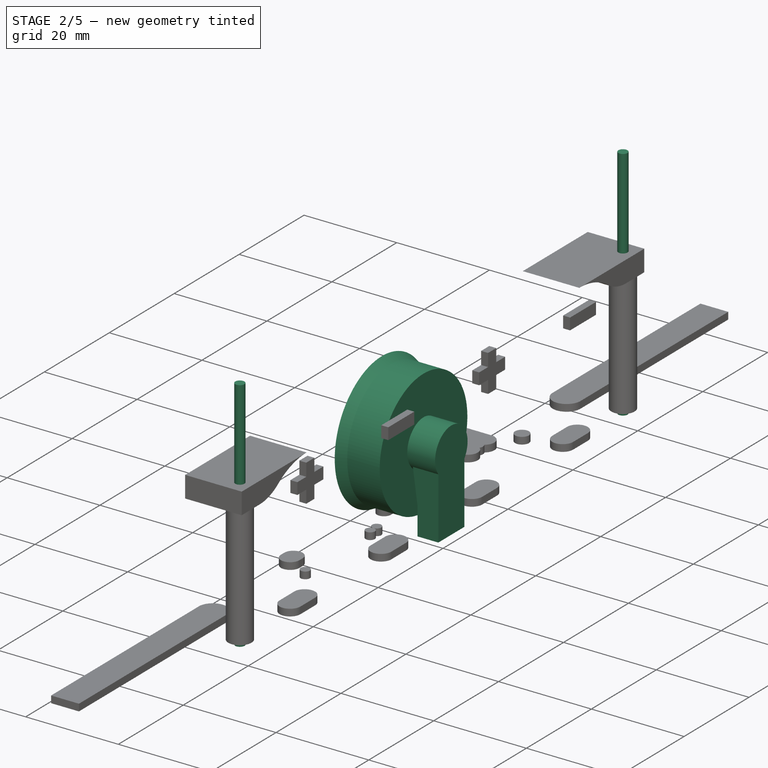
[diagram: stage 2 of 5 — iso view after this stage's code; geometry added in this stage tinted green]
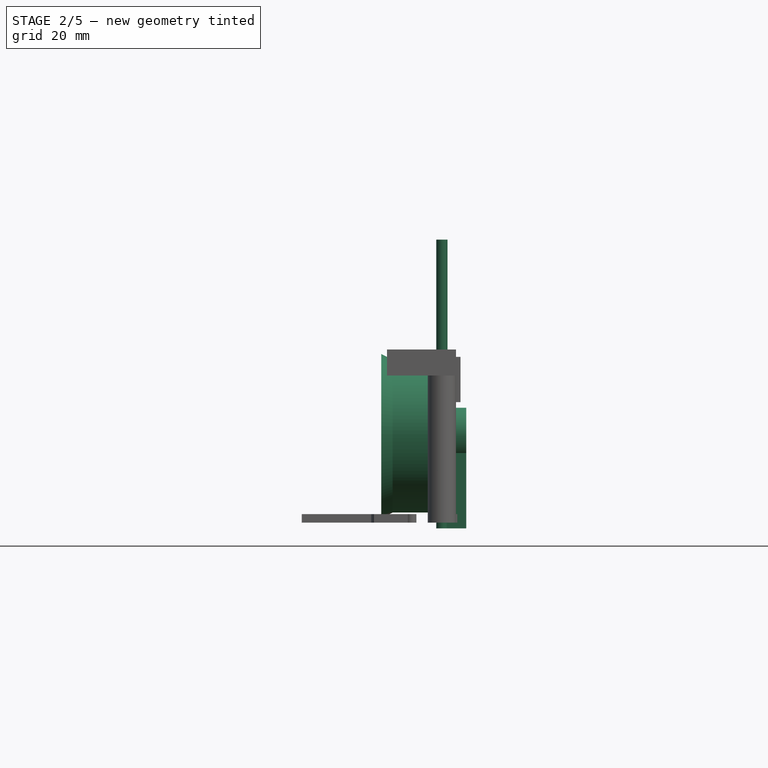
[diagram: stage 2 of 5 — front view after this stage's code; geometry added in this stage tinted green]
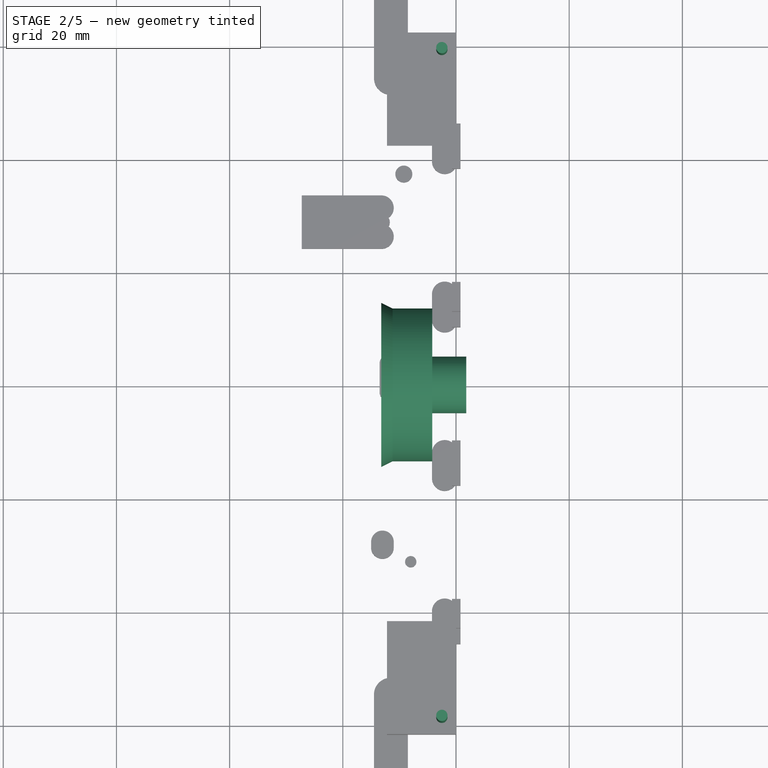
[diagram: stage 2 of 5 — top view after this stage's code; geometry added in this stage tinted green]
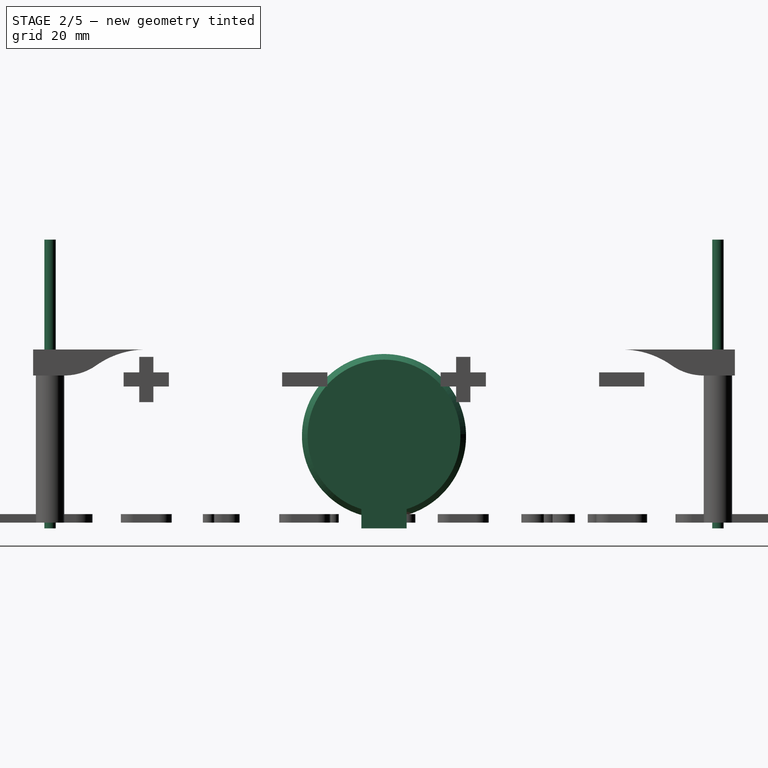
[diagram: stage 2 of 5 — right view after this stage's code; geometry added in this stage tinted green]
FEATURE [Part::Revolution] Revolve001  label="Cell_cutout_revolve"
  Angle = 360
  Axis = (1,0,0)
  Base = (0,0,15.3)
  FaceMakerClass = Part::FaceMakerBullseye
  Solid = true
  Source = -> Sketch001
  Symmetric = false
  expr: .Base.z = <<Param>>.Cell_diameter / 2 + <<Param>>.Cell_standoff
FEATURE [Part::Extrusion] Extrude  label="Tab_cutout_extrude"
  Base = -> Sketch002
  Dir = (0,-1,2e-16)
  DirMode = 2
  FaceMakerClass = Part::FaceMakerBullseye
  FaceMakerMode = 3
  LengthFwd = 4
  LengthRev = 4
  Solid = true
  Symmetric = false
  expr: LengthFwd = <<Param>>.Tab_width / 2 + <<Param>>.Tab_tolerance
  expr: LengthRev = <<Param>>.Tab_width / 2 + <<Param>>.Tab_tolerance
FEATURE [PartDesign::Body] Body  label="Cell_holder_Body"
  AllowCompound = false
  BaseFeature = -> Revolve
  Group = -> [BaseFeature,LinearPattern]
  Origin = -> Origin
  Placement = pos=(0,-42,0) rot=(0,0,1;0rad)
  Tip = -> LinearPattern
  expr: .Placement.Base.y = -((<<Param>>.Cell_nof - 1) / 2) * (<<Param>>.Cell_diameter + <<Param>>.Cell_spacing)
FEATURE [Part::MultiFuse] Fusion  label="Cutout_Fusion"
  Shapes = -> [Revolve001,Extrude]
FEATURE [Sketcher::SketchObject] Sketch005  label="Holder_mount_Sketch"
  ArcFitTolerance = 1e-06
  FullyConstrained = true
  MakeInternals = false
  expr: Constraints[0] = <<Param>>.Holder_mount_hole
  expr: Constraints[1] = <<Param>>.Holder_mount_hole
  expr: Constraints[2] = <<Param>>.Holder_mount_distance / 2
  expr: Constraints[3] = <<Param>>.Holder_mount_distance / 2
  expr: Constraints[7] = <<Param>>.Holder_mount_width / 2
  sketch-geometry (3):
    g0: Circle CenterX=37.5 CenterY=59 CenterZ=0 NormalX=0 NormalY=0 NormalZ=1 AngleXU=0 Radius=1
    g1: Circle CenterX=37.5 CenterY=-59 CenterZ=0 NormalX=0 NormalY=0 NormalZ=1 AngleXU=0 Radius=1
    g2: LineSegment [constr] StartX=37.5 StartY=59 StartZ=0 EndX=37.5 EndY=-59 EndZ=0
  constraints (8):
    c: Diameter(g0) = 2
    c: Diameter(g1) = 2
    c: Distance(g1,g-1) = 59
    c: Distance(g0,g-1) = 59
    c: Coincident(g2,g0)
    c: Vertical(g2)
    c: Coincident(g2,g1)
    c: Distance(g-1,g2) = 37.5
FEATURE [Part::Extrusion] Extrude003  label="Holder_mount_Extrude"
  Base = -> Sketch005
  Dir = (0,0,1)
  DirMode = 2
  FaceMakerClass = Part::FaceMakerBullseye
  FaceMakerMode = 3
  LengthFwd = 50
  LengthRev = 1
  Solid = true
  Symmetric = false
  expr: LengthFwd = <<Param>>.Holder_mount_screw_length
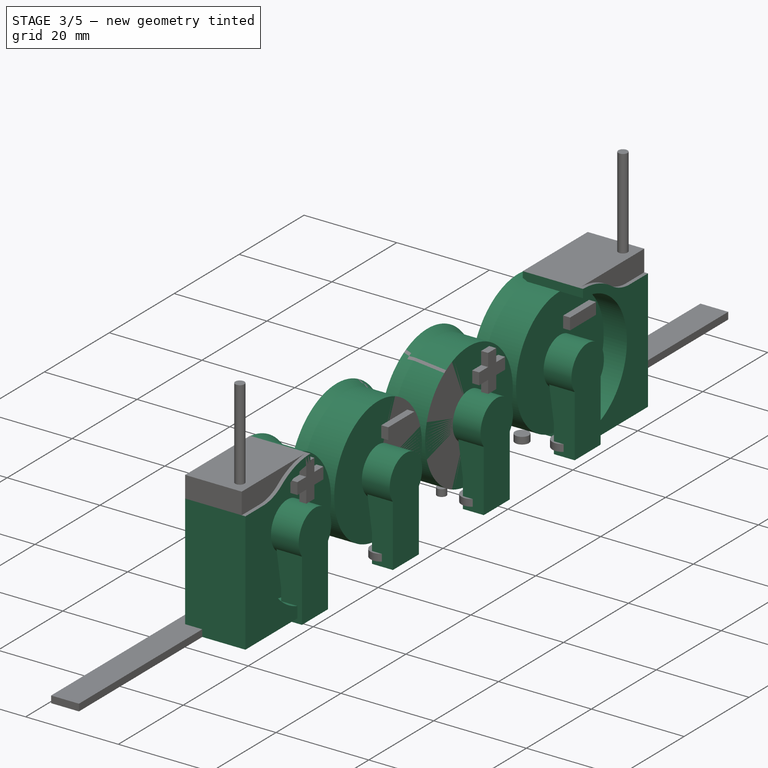
[diagram: stage 3 of 5 — iso view after this stage's code; geometry added in this stage tinted green]
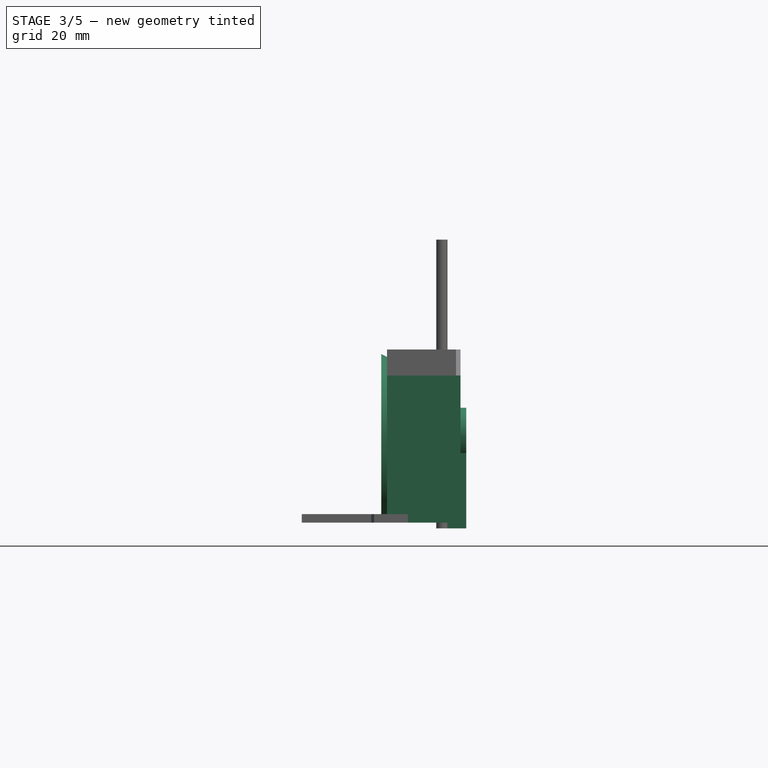
[diagram: stage 3 of 5 — front view after this stage's code; geometry added in this stage tinted green]
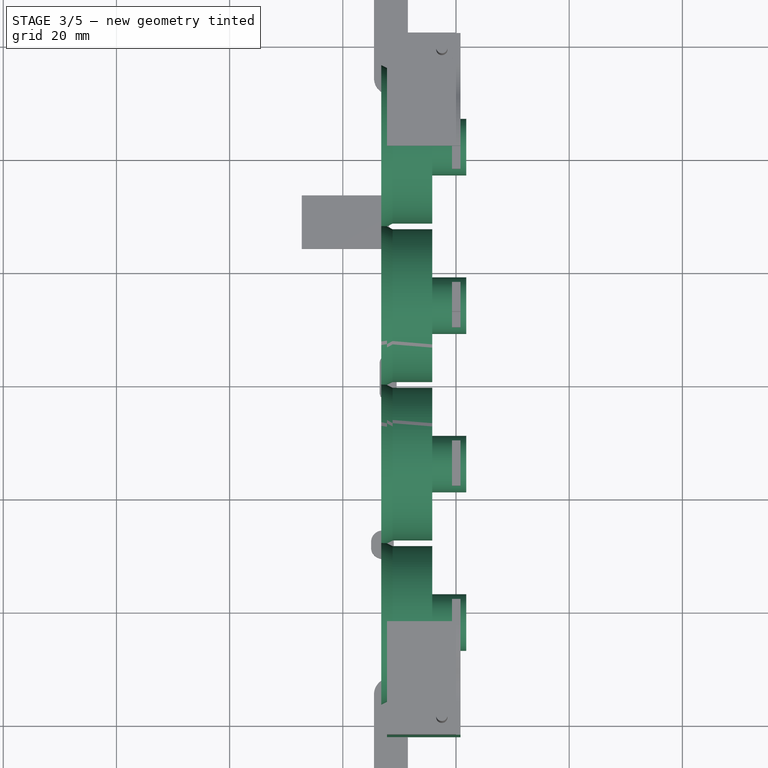
[diagram: stage 3 of 5 — top view after this stage's code; geometry added in this stage tinted green]
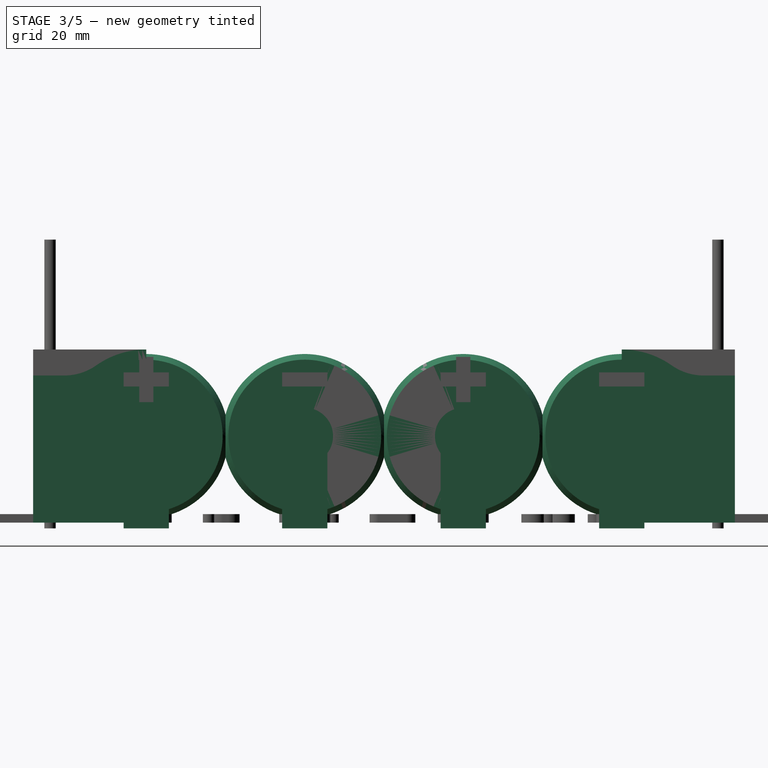
[diagram: stage 3 of 5 — right view after this stage's code; geometry added in this stage tinted green]
FEATURE [PartDesign::FeatureBase] BaseFeature001
  BaseFeature = -> Fusion
  Suppressed = false
FEATURE [PartDesign::LinearPattern] LinearPattern001
  BaseFeature = -> BaseFeature001
  Direction = -> Y_Axis001
  Length = 84
  Mode = 1
  Occurrences = 4
  Offset = 28
  Suppressed = false
  TransformMode = 1
  expr: Occurrences = <<Param>>.Cell_nof
  expr: Offset = <<Param>>.Cell_diameter + <<Param>>.Cell_spacing
FEATURE [PartDesign::Body] Body002  label="Holder_filler_Body"
  AllowCompound = false
  BaseFeature = -> Extrude001
  Group = -> [BaseFeature002,LinearPattern002]
  Origin = -> Origin002
  Placement = pos=(27.8,-28,0) rot=(0,0,1;0rad)
  Tip = -> LinearPattern002
  expr: .Placement.Base.x = <<Param>>.Cell_length / 2 + Spreadsheet.Cell_tolerance_length - Spreadsheet.Holder_cell_length
  expr: .Placement.Base.y = -((<<Param>>.Cell_nof - 2) / 2 * (<<Param>>.Cell_diameter + <<Param>>.Cell_spacing))
FEATURE [Sketcher::SketchObject] Sketch004  label="Holder_end_Sketch"
  ArcFitTolerance = 1e-06
  FullyConstrained = true
  MakeInternals = false
  Placement = pos=(0,0,0) rot=(0.57735,0.57735,0.57735;2.0944rad)
  expr: Constraints[16] = <<Param>>.Cell_standoff + <<Param>>.Cell_diameter / 2
  expr: Constraints[17] = (<<Param>>.Cell_nof - 1) / 2 * (<<Param>>.Cell_diameter + <<Param>>.Cell_spacing)
  expr: Constraints[18] = <<Param>>.Cell_standoff + <<Param>>.Cell_diameter + <<Param>>.Cell_tolerance_radius
  expr: Constraints[19] = <<Param>>.Cell_standoff + <<Param>>.Cell_diameter + <<Param>>.Cell_tolerance_radius + <<Param>>.Holder_wall_radius
  expr: Constraints[38] = (<<Param>>.Cell_nof - 1) / 2 * (<<Param>>.Cell_diameter + <<Param>>.Cell_spacing)
  expr: Constraints[39] = <<Param>>.Cell_standoff + <<Param>>.Cell_diameter / 2
  expr: Constraints[40] = <<Param>>.Cell_standoff + <<Param>>.Cell_diameter + <<Param>>.Cell_tolerance_radius
  expr: Constraints[41] = <<Param>>.Cell_standoff + <<Param>>.Cell_diameter + <<Param>>.Cell_tolerance_radius + <<Param>>.Holder_wall_radius
  expr: Constraints[66] = <<Param>>.Holder_mount_distance / 2 + <<Param>>.Holder_mount_hole / 2 + <<Param>>.Holder_mount_wall
  expr: Constraints[67] = <<Param>>.Holder_mount_distance / 2 + <<Param>>.Holder_mount_hole / 2 + <<Param>>.Holder_mount_wall
  expr: Constraints[68] = <<Param>>.Holder_mount_height
  expr: Constraints[69] = <<Param>>.Holder_mount_height
  expr: Constraints[73] = <<Param>>.Holder_mount_distance / 2
  expr: Constraints[77] = <<Param>>.Holder_mount_distance / 2
  expr: Constraints[78] = <<Param>>.Holder_mount_distance / 2 - <<Param>>.Holder_mount_hole / 2 - <<Param>>.Holder_mount_stud_wall
  expr: Constraints[79] = <<Param>>.Holder_mount_distance / 2 - <<Param>>.Holder_mount_hole / 2 - <<Param>>.Holder_mount_stud_wall
  sketch-geometry (28):
    g0: ArcOfCircle CenterX=-42 CenterY=15.3 CenterZ=0 NormalX=0 NormalY=0 NormalZ=1 AngleXU=0 Radius=13.5 StartAngle=1.5708 EndAngle=4.71239
    g1: ArcOfCircle CenterX=-42 CenterY=15.3 CenterZ=0 NormalX=0 NormalY=0 NormalZ=1 AngleXU=0 Radius=15.3 StartAngle=1.5708 EndAngle=2.18519
    g2: LineSegment StartX=-42 StartY=30.6 StartZ=0 EndX=-42 EndY=28.8 EndZ=0
    g3: LineSegment StartX=-42 StartY=1.8 StartZ=0 EndX=-42 EndY=0 EndZ=0
    g4: LineSegment StartX=-42 StartY=0 StartZ=0 EndX=-62 EndY=0 EndZ=0
    g5: LineSegment [constr] StartX=-42 StartY=28.8 StartZ=0 EndX=-42 EndY=15.3 EndZ=0
    g6: LineSegment [constr] StartX=-42 StartY=15.3 StartZ=0 EndX=-50.8199 EndY=27.802 EndZ=0
    g7: LineSegment [constr] StartX=-42 StartY=15.3 StartZ=0 EndX=-42 EndY=1.8 EndZ=0
    g8: ArcOfCircle CenterX=42 CenterY=15.3 CenterZ=0 NormalX=0 NormalY=0 NormalZ=1 AngleXU=0 Radius=15.3 StartAngle=0.956399 EndAngle=1.5708
    g9: ArcOfCircle CenterX=42 CenterY=15.3 CenterZ=0 NormalX=0 NormalY=0 NormalZ=1 AngleXU=0 Radius=13.5 StartAngle=4.71239 EndAngle=7.85398
    g10: LineSegment StartX=42 StartY=30.6 StartZ=0 EndX=42 EndY=28.8 EndZ=0
    g11: LineSegment StartX=42 StartY=1.8 StartZ=0 EndX=42 EndY=0 EndZ=0
    g12: LineSegment StartX=42 StartY=0 StartZ=0 EndX=62 EndY=0 EndZ=0
    g13: LineSegment [constr] StartX=42 StartY=28.8 StartZ=0 EndX=42 EndY=15.3 EndZ=0
    g14: LineSegment [constr] StartX=42 StartY=1.8 StartZ=0 EndX=42 EndY=15.3 EndZ=0
    g15: LineSegment [constr] StartX=42 StartY=15.3 StartZ=0 EndX=50.8199 EndY=27.802 EndZ=0
    g16: LineSegment StartX=-62 StartY=0 StartZ=0 EndX=-62 EndY=26 EndZ=0
    g17: LineSegment StartX=-62 StartY=26 StartZ=0 EndX=-56.5 EndY=26 EndZ=0
    g18: ArcOfCircle CenterX=-56.5 CenterY=35.8533 CenterZ=0 NormalX=0 NormalY=0 NormalZ=1 AngleXU=0 Radius=9.85326 StartAngle=4.71239 EndAngle=5.32679
    g19: LineSegment [constr] StartX=-56.5 StartY=35.8533 StartZ=0 EndX=-56.5 EndY=26 EndZ=0
    g20: LineSegment [constr] StartX=-56.5 StartY=35.8533 StartZ=0 EndX=-50.8199 EndY=27.802 EndZ=0
    g21: LineSegment StartX=62 StartY=0 StartZ=0 EndX=62 EndY=26 EndZ=0
    g22: LineSegment StartX=62 StartY=26 StartZ=0 EndX=56.5 EndY=26 EndZ=0
    g23: ArcOfCircle CenterX=56.5 CenterY=35.8533 CenterZ=0 NormalX=0 NormalY=0 NormalZ=1 AngleXU=0 Radius=9.85326 StartAngle=4.09799 EndAngle=4.71239
    g24: LineSegment [constr] StartX=56.5 StartY=35.8533 StartZ=0 EndX=56.5 EndY=26 EndZ=0
    g25: LineSegment [constr] StartX=56.5 StartY=35.8533 StartZ=0 EndX=50.8199 EndY=27.802 EndZ=0
    g26: LineSegment [constr] StartX=-59 StartY=26 StartZ=0 EndX=-59 EndY=0 EndZ=0
    g27: LineSegment [constr] StartX=59 StartY=26 StartZ=0 EndX=59 EndY=0 EndZ=0
  constraints (80):
    c: Coincident(g2,g1)
    c: Coincident(g2,g0)
    c: Vertical(g2)
    c: Coincident(g3,g0)
    c: Horizontal(g4)
    c: Coincident(g1,g0)
    c: Coincident(g5,g0)
    c: Coincident(g5,g0)
    c: Coincident(g6,g0)
    c: Coincident(g6,g1)
    c: Coincident(g7,g0)
    c: Coincident(g7,g0)
    c: Coincident(g3,g4)
    c: Vertical(g3)
    c: Vertical(g7)
    c: Vertical(g5)
    c: Distance(g0,g-1) = 15.3
    c: Distance(g0,g-2) = 42
    c: Distance(g0,g-1) = 28.8
    c: Distance(g1,g-1) = 30.6
    c: PointOnObject(g3,g-1)
    c: Coincident(g9,g8)
    c: Coincident(g10,g8)
    c: Coincident(g10,g9)
    c: Vertical(g10)
    c: Coincident(g11,g9)
    c: Vertical(g11)
    c: Coincident(g12,g11)
    c: Horizontal(g12)
    c: Coincident(g13,g9)
    c: Coincident(g13,g8)
    c: Vertical(g13)
    c: Coincident(g14,g9)
    c: Coincident(g14,g8)
    c: Coincident(g15,g8)
    c: Coincident(g15,g8)
    c: Vertical(g14)
    c: PointOnObject(g12,g-1)
    c: Distance(g8,g-2) = 42
    c: Distance(g8,g-1) = 15.3
    c: Distance(g9,g-1) = 28.8
    c: Distance(g8,g-1) = 30.6
    c: Coincident(g16,g4)
    c: Vertical(g16)
    c: Coincident(g17,g16)
    c: Coincident(g18,g17)
    c: Coincident(g18,g1)
    c: Coincident(g19,g18)
    c: Coincident(g20,g18)
    c: Coincident(g20,g1)
    c: Parallel(g20,g6)
    c: Perpendicular(g17,g19)
    c: Horizontal(g17)
    c: Coincident(g19,g17)
    c: Coincident(g21,g12)
    c: Vertical(g21)
    c: Coincident(g22,g21)
    c: Horizontal(g22)
    c: Coincident(g23,g22)
    c: Coincident(g23,g8)
    c: Coincident(g24,g23)
    c: Coincident(g24,g22)
    c: Coincident(g25,g23)
    c: Coincident(g25,g8)
    c: Parallel(g25,g15)
    c: Perpendicular(g22,g24)
    c: DistanceX(g4,g-1) = 62
    c: DistanceX(g-1,g12) = 62
    c: DistanceY(g-1,g16) = 26
    c: DistanceY(g-1,g21) = 26
    c: PointOnObject(g26,g4)
    c: Vertical(g26)
    c: PointOnObject(g26,g17)
    c: DistanceX(g26,g-1) = 59
    c: PointOnObject(g27,g22)
    c: PointOnObject(g27,g12)
    c: Vertical(g27)
    c: DistanceX(g-1,g27) = 59
    c: DistanceX(g17,g-1) = 56.5
    c: DistanceX(g-1,g22) = 56.5
FEATURE [Part::Extrusion] Extrude002  label="Holder_end_Extrude"
  Base = -> Sketch004
  Dir = (1,0,0)
  DirMode = 2
  FaceMakerClass = Part::FaceMakerBullseye
  FaceMakerMode = 3
  LengthFwd = 13
  LengthRev = 0
  Placement = pos=(27.8,0,0) rot=(0,0,1;0rad)
  Solid = true
  Symmetric = false
  expr: .Placement.Base.x = <<Param>>.Cell_length / 2 + Spreadsheet.Cell_tolerance_length - Spreadsheet.Holder_cell_length
  expr: LengthFwd = <<Param>>.Holder_cell_length + <<Param>>.Holder_wall_length
FEATURE [Part::MultiFuse] Fusion002  label="Holder_cutout_Fusion"
  Shapes = -> [Body001,Extrude003,Extrude005,Extrude006,Extrude007]
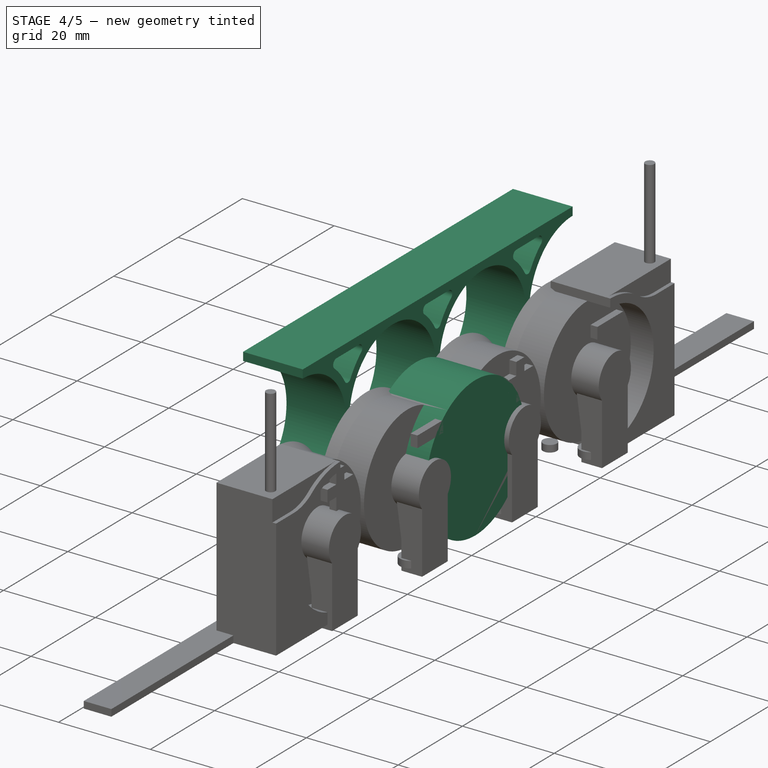
[diagram: stage 4 of 5 — iso view after this stage's code; geometry added in this stage tinted green]
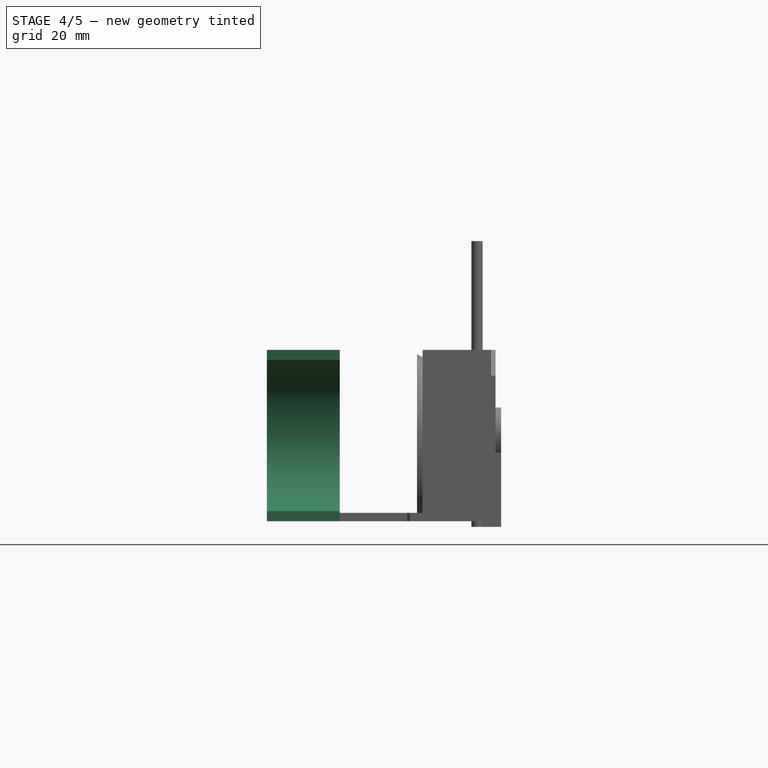
[diagram: stage 4 of 5 — front view after this stage's code; geometry added in this stage tinted green]
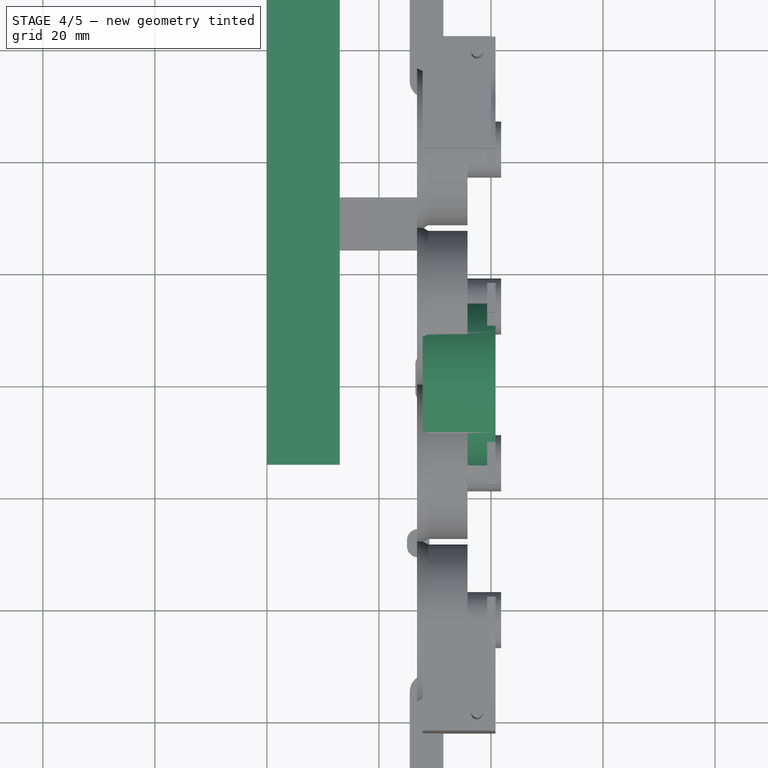
[diagram: stage 4 of 5 — top view after this stage's code; geometry added in this stage tinted green]
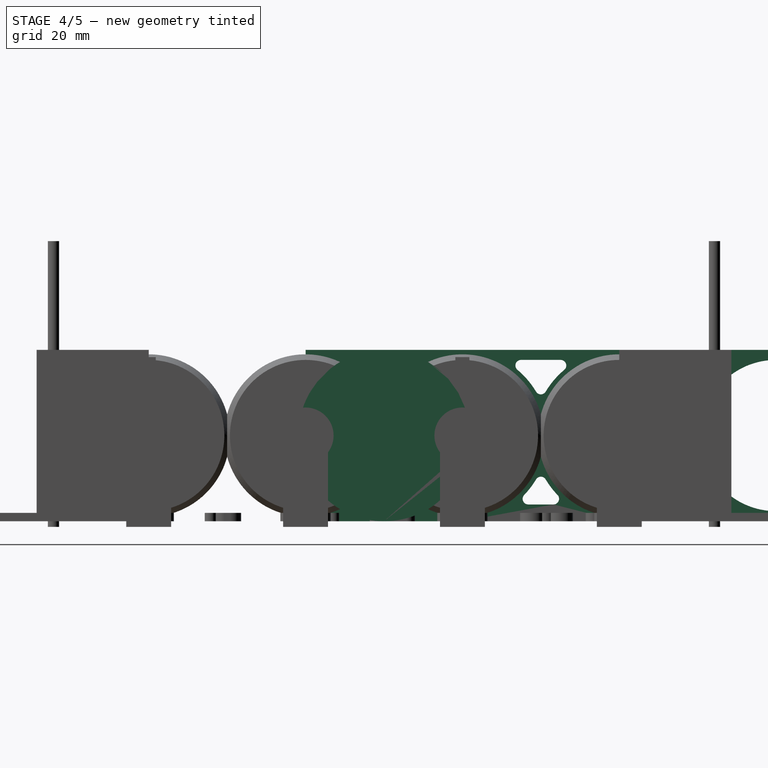
[diagram: stage 4 of 5 — right view after this stage's code; geometry added in this stage tinted green]
FEATURE [Spreadsheet::Sheet] Spreadsheet  label="Param"
  cells = A1='Cells; A2='Cell_nof; B2(Cell_nof)=4; A3='Cell_diameter; B3(Cell_diameter)=26.6; A4='Cell_length; B4(Cell_length)=71.2; A5='Cell_tolerance_radius; B5(Cell_tolerance_radius)=0.2; A6='Cell_tolerance_length; B6(Cell_tolerance_length)=0.2; A7='Cell_spacing; B7(Cell_spacing)=1.4; A8='Cell_standoff; B8(Cell_standoff)=2; A9='Cell_opening; B9(Cell_opening)=10; A10='Tabs; A11='Tab_width; B11(Tab_width)=6; A12='Tab_width_tolerance; B12(Tab_tolerance)=1; A13='Tab_groove_depth; B13(Tab_groove_depth)=3.5; A14='Tab_bend_height; B14(Tab_bend_height)=5; A15='Holder; A16='Holder_wall_radius; B16(Holder_wall_radius)=1.8; A17='Holder_base_thickness; B17(Holder_base_thickness)=3; A18='Holder_cell_length; B18(Holder_cell_length)=8; A19='Holder_wall_length; B19(Holder_wall_length)=5; A20='Holder_cell_chamfer_radius; B20(Holder_cell_chamfer_radius)=0.5; A21='Holder_cell_chamfer_length; B21(Holder_cell_chamfer_length)=1; A22='Holder_tab_thickness; B22(Holder_tab_thickness)=0.5; A23='Holder_opening_radius; B23(Holder_opening_radius)=1; A24='Holder_mount_thickness; B24(Holder_mount_thickness)=2; A25='Holder_mount_distance; B25=118; C25=0; D25(Holder_mount_distance)==max(B25; C25); A26='Holder_mount_width; B26(Holder_mount_width)=75; A27='Holder_mount_height; B27(Holder_mount_height)=26; A28='Holder_mount_hole; B28(Holder_mount_hole)=2; A29='Holder_mount_nut_width; B29(Holder_mount_nut_width)=5.5; A30='Holder_mount_nut_height; B30(Holder_mount_nut_height)=2; A31='Holder_mount_screw_length; B31(Holder_mount_screw_length)=50; A32='Holder_mount_wall; B32(Holder_mount_wall)=2; A33='Holder_mount_stud_wall; B33(Holder_mount_stud_wall)=1.5; A34='Polarity Marker; A35='Pol_line_width; B35(Pol_line_width)=2.5; A36='Pol_width; B36(Pol_width)=8; A37='Pol_height; B37(Pol_height)=8; A38='Pol_depth; B38(Pol_depth)=1.5; A39='Pol_offset_y; B39(Pol_offset_y)=0; A40='Pol_offset_z; B40(Pol_offset_z)=10
FEATURE [Sketcher::SketchObject] Sketch  label="Cell_holder_sketch"
  ArcFitTolerance = 1e-06
  FullyConstrained = true
  MakeInternals = false
  Placement = pos=(0,0,0) rot=(1,0,0;1.5708rad)
  expr: Constraints[10] = <<Param>>.Cell_standoff - <<Param>>.Cell_tolerance_radius - <<Param>>.Holder_wall_radius
  expr: Constraints[11] = <<Param>>.Cell_standoff + <<Param>>.Cell_diameter / 2
  expr: Constraints[8] = <<Param>>.Cell_length / 2 + <<Param>>.Cell_tolerance_length - <<Param>>.Holder_cell_length
  expr: Constraints[9] = <<Param>>.Cell_length / 2 + <<Param>>.Cell_tolerance_length + <<Param>>.Holder_wall_length
  sketch-geometry (4):
    g0: LineSegment StartX=27.8 StartY=0 StartZ=0 EndX=40.8 EndY=0 EndZ=0
    g1: LineSegment StartX=40.8 StartY=0 StartZ=0 EndX=40.8 EndY=15.3 EndZ=0
    g2: LineSegment StartX=40.8 StartY=15.3 StartZ=0 EndX=27.8 EndY=15.3 EndZ=0
    g3: LineSegment StartX=27.8 StartY=15.3 StartZ=0 EndX=27.8 EndY=0 EndZ=0
  constraints (12):
    c: Coincident(g0,g1)
    c: Coincident(g1,g2)
    c: Coincident(g2,g3)
    c: Coincident(g3,g0)
    c: Horizontal(g0)
    c: Horizontal(g2)
    c: Vertical(g1)
    c: Vertical(g3)
    c: Distance(g-1,g3) = 27.8
    c: Distance(g-1,g1) = 40.8
    c: Distance(g-1,g0) = 0
    c: Distance(g-1,g2) = 15.3
FEATURE [Sketcher::SketchObject] Sketch001  label="Cell_cutout_sketch"
  ArcFitTolerance = 1e-06
  FullyConstrained = true
  MakeInternals = false
  Placement = pos=(0,0,0) rot=(1,0,0;1.5708rad)
  expr: Constraints[15] = <<Param>>.Cell_diameter / 2 + <<Param>>.Cell_standoff
  expr: Constraints[16] = <<Param>>.Cell_standoff + <<Param>>.Cell_diameter / 2 - <<Param>>.Cell_opening / 2
  expr: Constraints[17] = <<Param>>.Cell_standoff - Spreadsheet.Cell_tolerance_radius
  expr: Constraints[18] = <<Param>>.Cell_standoff - Spreadsheet.Cell_tolerance_radius - Spreadsheet.Holder_cell_chamfer_radius
  expr: Constraints[19] = <<Param>>.Cell_length / 2 + Spreadsheet.Cell_tolerance_length - Spreadsheet.Holder_cell_length - 1
  expr: Constraints[20] = <<Param>>.Cell_length / 2 + Spreadsheet.Cell_tolerance_length - Spreadsheet.Holder_cell_length
  expr: Constraints[21] = <<Param>>.Cell_length / 2 + Spreadsheet.Cell_tolerance_length - Spreadsheet.Holder_cell_length + Spreadsheet.Holder_cell_chamfer_length
  expr: Constraints[22] = <<Param>>.Cell_length / 2 + Spreadsheet.Cell_tolerance_length
  expr: Constraints[23] = <<Param>>.Cell_length / 2 + Spreadsheet.Cell_tolerance_length + Spreadsheet.Holder_wall_length + 1
  sketch-geometry (8):
    g0: LineSegment StartX=26.8 StartY=15.3 StartZ=0 EndX=41.8 EndY=15.3 EndZ=0
    g1: LineSegment StartX=41.8 StartY=15.3 StartZ=0 EndX=41.8 EndY=10.3 EndZ=0
    g2: LineSegment StartX=41.8 StartY=10.3 StartZ=0 EndX=35.8 EndY=10.3 EndZ=0
    g3: LineSegment StartX=35.8 StartY=10.3 StartZ=0 EndX=35.8 EndY=1.8 EndZ=0
    g4: LineSegment StartX=35.8 StartY=1.8 StartZ=0 EndX=28.8 EndY=1.8 EndZ=0
    g5: LineSegment StartX=28.8 StartY=1.8 StartZ=0 EndX=27.8 EndY=1.3 EndZ=0
    g6: LineSegment StartX=27.8 StartY=1.3 StartZ=0 EndX=26.8 EndY=0.8 EndZ=0
    g7: LineSegment StartX=26.8 StartY=0.8 StartZ=0 EndX=26.8 EndY=15.3 EndZ=0
  constraints (24):
    c: Horizontal(g0)
    c: Coincident(g1,g0)
    c: Vertical(g1)
    c: Coincident(g2,g1)
    c: Horizontal(g2)
    c: Coincident(g3,g2)
    c: Vertical(g3)
    c: Coincident(g4,g3)
    c: Horizontal(g4)
    c: Coincident(g5,g4)
    c: Coincident(g6,g5)
    c: Coincident(g7,g6)
    c: Coincident(g7,g0)
    c: Vertical(g7)
    c: Parallel(g5,g6)
    c: Distance(g0,g-1) = 15.3
    c: Distance(g1,g-1) = 10.3
    c: Distance(g3,g-1) = 1.8
    c: Distance(g5,g-1) = 1.3
    c: Distance(g0,g-2) = 26.8
    c: Distance(g5,g-2) = 27.8
    c: Distance(g4,g-2) = 28.8
    c: Distance(g3,g-2) = 35.8
    c: Distance(g-1,g1) = 41.8
FEATURE [Sketcher::SketchObject] Sketch002  label="Tab_cutout_sketch"
  ArcFitTolerance = 1e-06
  FullyConstrained = true
  MakeInternals = false
  Placement = pos=(0,0,0) rot=(1,0,0;1.5708rad)
  expr: Constraints[13] = <<Param>>.Cell_standoff + <<Param>>.Cell_diameter / 2
  expr: Constraints[15] = <<Param>>.Cell_length / 2 + Spreadsheet.Cell_tolerance_length
  expr: Constraints[16] = <<Param>>.Cell_length / 2 + Spreadsheet.Cell_tolerance_length + <<Param>>.Holder_tab_thickness
  expr: Constraints[17] = <<Param>>.Cell_length / 2 + Spreadsheet.Cell_tolerance_radius + <<Param>>.Holder_wall_length - <<Param>>.Tab_groove_depth
  expr: Constraints[18] = <<Param>>.Cell_length / 2 + Spreadsheet.Cell_tolerance_radius + <<Param>>.Holder_wall_length + 1
  expr: Constraints[19] = <<Param>>.Cell_standoff + <<Param>>.Cell_diameter / 2 - sqrt((<<Param>>.Cell_opening / 2) ^ 2 - (<<Param>>.Tab_width / 2 + <<Param>>.Tab_tolerance) ^ 2)
  expr: Constraints[20] = <<Param>>.Tab_bend_height
  sketch-geometry (7):
    g0: LineSegment StartX=41.8 StartY=15.3 StartZ=0 EndX=35.8 EndY=15.3 EndZ=0
    g1: LineSegment StartX=35.8 StartY=15.3 StartZ=0 EndX=35.8 EndY=12.3 EndZ=0
    g2: LineSegment StartX=35.8 StartY=12.3 StartZ=0 EndX=36.3 EndY=12.3 EndZ=0
    g3: LineSegment StartX=36.3 StartY=12.3 StartZ=0 EndX=37.3 EndY=5 EndZ=0
    g4: LineSegment StartX=37.3 StartY=5 StartZ=0 EndX=37.3 EndY=-1 EndZ=0
    g5: LineSegment StartX=37.3 StartY=-1 StartZ=0 EndX=41.8 EndY=-1 EndZ=0
    g6: LineSegment StartX=41.8 StartY=-1 StartZ=0 EndX=41.8 EndY=15.3 EndZ=0
  constraints (21):
    c: Horizontal(g0)
    c: Coincident(g1,g0)
    c: Vertical(g1)
    c: Coincident(g2,g1)
    c: Coincident(g3,g2)
    c: Coincident(g4,g3)
    c: Vertical(g4)
    c: Coincident(g5,g4)
    c: Horizontal(g5)
    c: Coincident(g6,g5)
    c: Coincident(g6,g0)
    c: Vertical(g6)
    c: Distance(g4,g-1) = 1
    c: Distance(g0,g-1) = 15.3
    c: Horizontal(g2)
    c: Distance(g0,g-2) = 35.8
    c: Distance(g2,g-2) = 36.3
    c: Distance(g4,g-2) = 37.3
    c: Distance(g5,g-2) = 41.8
    c: Distance(g2,g-1) = 12.3
    c: Distance(g3,g-1) = 5
FEATURE [Part::Revolution] Revolve  label="Cell_holder_revolve"
  Angle = 360
  Axis = (1,0,0)
  Base = (0,0,15.3)
  FaceMakerClass = Part::FaceMakerBullseye
  Solid = true
  Source = -> Sketch
  Symmetric = false
  expr: .Base.z = <<Param>>.Cell_diameter / 2 + <<Param>>.Cell_standoff
FEATURE [PartDesign::Body] Body001  label="Cutout_Body"
  AllowCompound = false
  BaseFeature = -> Fusion
  Group = -> [BaseFeature001,LinearPattern001]
  Origin = -> Origin001
  Placement = pos=(0,-42,0) rot=(0,0,1;0rad)
  Tip = -> LinearPattern001
  expr: .Placement.Base.y = -((<<Param>>.Cell_nof - 1) / 2) * (<<Param>>.Cell_diameter + <<Param>>.Cell_spacing)
FEATURE [Sketcher::SketchObject] Sketch003  label="Holder_filler_Sketch"
  ArcFitTolerance = 1e-06
  FullyConstrained = true
  MakeInternals = false
  Placement = pos=(0,0,0) rot=(0.57735,0.57735,0.57735;2.0944rad)
  expr: Constraints[102] = <<Param>>.Cell_diameter + 2 * <<Param>>.Cell_tolerance_radius + 2 * <<Param>>.Holder_wall_radius
  expr: Constraints[103] = <<Param>>.Cell_diameter + 2 * <<Param>>.Cell_tolerance_radius + 2 * <<Param>>.Holder_wall_radius
  expr: Constraints[104] = <<Param>>.Holder_base_thickness
  expr: Constraints[11] = (<<Param>>.Cell_diameter + <<Param>>.Cell_spacing) / 2
  expr: Constraints[25] = <<Param>>.Cell_diameter + 2 * <<Param>>.Cell_tolerance_radius
  expr: Constraints[26] = <<Param>>.Cell_diameter + 2 * <<Param>>.Cell_tolerance_radius
  expr: Constraints[62] = <<Param>>.Cell_diameter + 2 * <<Param>>.Cell_tolerance_radius + 2 * <<Param>>.Holder_wall_radius
  expr: Constraints[63] = <<Param>>.Cell_diameter + 2 * <<Param>>.Cell_tolerance_radius + 2 * <<Param>>.Holder_wall_radius
  expr: Constraints[64] = <<Param>>.Holder_opening_radius
  expr: Constraints[65] = <<Param>>.Holder_opening_radius
  expr: Constraints[66] = <<Param>>.Holder_opening_radius
  expr: Constraints[69] = <<Param>>.Cell_standoff + <<Param>>.Cell_diameter + <<Param>>.Cell_tolerance_radius
  expr: Constraints[70] = <<Param>>.Cell_standoff + <<Param>>.Cell_diameter + <<Param>>.Cell_tolerance_radius + <<Param>>.Holder_wall_radius
  expr: Constraints[8] = <<Param>>.Cell_standoff + <<Param>>.Cell_diameter / 2
  expr: Constraints[97] = <<Param>>.Holder_opening_radius
  expr: Constraints[98] = <<Param>>.Holder_opening_radius
  expr: Constraints[99] = <<Param>>.Holder_opening_radius
  sketch-geometry (38):
    g0: LineSegment [constr] StartX=-14 StartY=15.3 StartZ=0 EndX=0 EndY=15.3 EndZ=0
    g1: LineSegment [constr] StartX=0 StartY=15.3 StartZ=0 EndX=14 EndY=15.3 EndZ=0
    g2: LineSegment StartX=-14 StartY=30.6 StartZ=0 EndX=14 EndY=30.6 EndZ=0
    g3: LineSegment StartX=14 StartY=30.6 StartZ=0 EndX=14 EndY=28.8 EndZ=0
    g4: LineSegment StartX=-14 StartY=28.8 StartZ=0 EndX=-14 EndY=30.6 EndZ=0
    g5: ArcOfCircle CenterX=-14 CenterY=15.3 CenterZ=0 NormalX=0 NormalY=0 NormalZ=1 AngleXU=0 Radius=13.5 StartAngle=4.71239 EndAngle=7.85398
    g6: ArcOfCircle CenterX=14 CenterY=15.3 CenterZ=0 NormalX=0 NormalY=0 NormalZ=1 AngleXU=0 Radius=13.5 StartAngle=1.5708 EndAngle=4.71239
    g7: LineSegment [constr] StartX=-14 StartY=28.8 StartZ=0 EndX=-14 EndY=15.3 EndZ=0
    g8: LineSegment [constr] StartX=-14 StartY=1.8 StartZ=0 EndX=-14 EndY=15.3 EndZ=0
    g9: LineSegment [constr] StartX=14 StartY=28.8 StartZ=0 EndX=14 EndY=15.3 EndZ=0
    g10: LineSegment [constr] StartX=14 StartY=1.8 StartZ=0 EndX=14 EndY=15.3 EndZ=0
    g11: LineSegment StartX=-14 StartY=1.8 StartZ=0 EndX=-14 EndY=0 EndZ=0
    g12: LineSegment StartX=-14 StartY=0 StartZ=0 EndX=14 EndY=0 EndZ=0
    g13: LineSegment StartX=14 StartY=0 StartZ=0 EndX=14 EndY=1.8 EndZ=0
    g14: ArcOfCircle CenterX=14 CenterY=15.3 CenterZ=0 NormalX=0 NormalY=0 NormalZ=1 AngleXU=0 Radius=15.3 StartAngle=2.26764 EndAngle=2.60391
    g15: ArcOfCircle CenterX=-14 CenterY=15.3 CenterZ=0 NormalX=0 NormalY=0 NormalZ=1 AngleXU=0 Radius=15.3 StartAngle=0.537687 EndAngle=0.873952
    g16: ArcOfCircle CenterX=-1.9e-15 CenterY=23.6481 CenterZ=0 NormalX=0 NormalY=0 NormalZ=1 AngleXU=0 Radius=1 StartAngle=3.67928 EndAngle=5.7455
    g17: ArcOfCircle CenterX=-3.53864 CenterY=27.8 CenterZ=0 NormalX=0 NormalY=0 NormalZ=1 AngleXU=0 Radius=1 StartAngle=1.5708 EndAngle=4.01554
    g18: ArcOfCircle CenterX=3.53864 CenterY=27.8 CenterZ=0 NormalX=0 NormalY=0 NormalZ=1 AngleXU=0 Radius=1 StartAngle=5.40923 EndAngle=7.85398
    g19: LineSegment StartX=-3.53864 StartY=28.8 StartZ=0 EndX=3.53864 EndY=28.8 EndZ=0
    g20: LineSegment [constr] StartX=-3.53864 StartY=28.8 StartZ=0 EndX=-3.53864 EndY=27.8 EndZ=0
    g21: LineSegment [constr] StartX=-3.53864 StartY=27.8 StartZ=0 EndX=-4.18044 EndY=27.0331 EndZ=0
    g22: LineSegment [constr] StartX=-1.9e-15 StartY=23.6481 StartZ=0 EndX=0.858896 EndY=23.1359 EndZ=0
    g23: LineSegment [constr] StartX=-1.9e-15 StartY=23.6481 StartZ=0 EndX=-0.858896 EndY=23.1359 EndZ=0
    g24: LineSegment [constr] StartX=3.53864 StartY=27.8 StartZ=0 EndX=3.53864 EndY=28.8 EndZ=0
    g25: LineSegment [constr] StartX=3.53864 StartY=27.8 StartZ=0 EndX=4.18044 EndY=27.0331 EndZ=0
    g26: ArcOfCircle CenterX=-2.25266 CenterY=4 CenterZ=0 NormalX=0 NormalY=0 NormalZ=1 AngleXU=0 Radius=1 StartAngle=2.3756 EndAngle=4.71239
    g27: ArcOfCircle CenterX=2.25266 CenterY=4 CenterZ=0 NormalX=0 NormalY=0 NormalZ=1 AngleXU=0 Radius=1 StartAngle=4.71239 EndAngle=7.04918
    g28: ArcOfCircle CenterX=9e-16 CenterY=6.95195 CenterZ=0 NormalX=0 NormalY=0 NormalZ=1 AngleXU=0 Radius=1 StartAngle=0.537687 EndAngle=2.60391
    g29: ArcOfCircle CenterX=14 CenterY=15.3 CenterZ=0 NormalX=0 NormalY=0 NormalZ=1 AngleXU=0 Radius=15.3 StartAngle=3.67928 EndAngle=3.90758
    g30: ArcOfCircle CenterX=-14 CenterY=15.3 CenterZ=0 NormalX=0 NormalY=0 NormalZ=1 AngleXU=0 Radius=15.3 StartAngle=5.51719 EndAngle=5.7455
    g31: LineSegment StartX=-2.25266 StartY=3 StartZ=0 EndX=2.25266 EndY=3 EndZ=0
    g32: LineSegment [constr] StartX=-2.97336 StartY=4.69325 StartZ=0 EndX=-2.25266 EndY=4 EndZ=0
    g33: LineSegment [constr] StartX=-2.25266 StartY=3 StartZ=0 EndX=-2.25266 EndY=4 EndZ=0
    g34: LineSegment [constr] StartX=2.25266 StartY=3 StartZ=0 EndX=2.25266 EndY=4 EndZ=0
    g35: LineSegment [constr] StartX=2.97336 StartY=4.69325 StartZ=0 EndX=2.25266 EndY=4 EndZ=0
    g36: LineSegment [constr] StartX=0.858896 StartY=7.4641 StartZ=0 EndX=9e-16 EndY=6.95195 EndZ=0
    g37: LineSegment [constr] StartX=-0.858896 StartY=7.4641 StartZ=0 EndX=9e-16 EndY=6.95195 EndZ=0
  constraints (105):
    c: PointOnObject(g0,g-2)
    c: Coincident(g1,g0)
    c: Equal(g0,g1)
    c: Horizontal(g2)
    c: Coincident(g3,g2)
    c: Vertical(g3)
    c: Coincident(g4,g2)
    c: Vertical(g4)
    c: Distance(g0,g-1) = 15.3
    c: Horizontal(g1)
    c: Horizontal(g0)
    c: Distance(g0,g0) = 14
    c: Coincident(g5,g0)
    c: Coincident(g6,g1)
    c: Coincident(g7,g5)
    c: Coincident(g7,g0)
    c: Coincident(g8,g5)
    c: Coincident(g8,g0)
    c: Vertical(g8)
    c: Coincident(g9,g6)
    c: Coincident(g9,g1)
    c: Coincident(g10,g6)
    c: Coincident(g10,g1)
    c: Vertical(g9)
    c: Vertical(g10)
    c: Diameter(g5) = 27
    c: Diameter(g6) = 27
    c: Coincident(g4,g5)
    c: Coincident(g3,g6)
    c: Vertical(g7)
    c: Coincident(g11,g5)
    c: Vertical(g11)
    c: Coincident(g12,g11)
    c: Horizontal(g12)
    c: Coincident(g13,g12)
    c: Coincident(g13,g6)
    c: Vertical(g13)
    c: Coincident(g16,g14)
    c: Coincident(g16,g15)
    c: Coincident(g17,g15)
    c: Coincident(g18,g14)
    c: Coincident(g19,g17)
    c: Coincident(g19,g18)
    c: Horizontal(g19)
    c: Coincident(g20,g17)
    c: Coincident(g20,g17)
    c: Coincident(g21,g17)
    c: Coincident(g21,g15)
    c: Coincident(g22,g16)
    c: Coincident(g22,g14)
    c: Coincident(g23,g16)
    c: Coincident(g23,g15)
    c: Coincident(g24,g18)
    c: Coincident(g24,g18)
    c: Vertical(g24)
    c: Coincident(g25,g18)
    c: Coincident(g25,g14)
    c: Perpendicular(g15,g23)
    c: Perpendicular(g14,g22)
    c: Perpendicular(g14,g25)
    c: Perpendicular(g15,g21)
    c: Vertical(g20)
    c: Diameter(g15) = 30.6
    c: Diameter(g14) = 30.6
    c: Radius(g17) = 1
    c: Radius(g18) = 1
    c: Radius(g16) = 1
    c: Coincident(g15,g0)
    c: Coincident(g14,g1)
    c: Distance(g-1,g19) = 28.8
    c: Distance(g2,g-1) = 30.6
    c: PointOnObject(g12,g-1)
    c: Coincident(g29,g28)
    c: Coincident(g29,g27)
    c: Coincident(g30,g28)
    c: Coincident(g30,g26)
    c: Coincident(g31,g26)
    c: Coincident(g31,g27)
    c: Horizontal(g31)
    c: Coincident(g32,g26)
    c: Coincident(g32,g26)
    c: Coincident(g33,g26)
    c: Coincident(g33,g32)
    c: Coincident(g34,g27)
    c: Coincident(g34,g27)
    c: Coincident(g35,g27)
    c: Coincident(g35,g27)
    c: Coincident(g36,g28)
    c: Coincident(g36,g28)
    c: Coincident(g37,g28)
    c: Coincident(g37,g28)
    c: Perpendicular(g30,g37)
    c: Perpendicular(g29,g36)
    c: Perpendicular(g30,g32)
    c: Perpendicular(g31,g33)
    c: Perpendicular(g31,g34)
    c: Perpendicular(g29,g35)
    c: Radius(g27) = 1
    c: Radius(g28) = 1
    c: Radius(g26) = 1
    c: Coincident(g1,g29)
    c: Coincident(g30,g0)
    c: Diameter(g29) = 30.6
    c: Diameter(g30) = 30.6
    c: Distance(g27,g-1) = 3
FEATURE [Part::Extrusion] Extrude001  label="Holder_filler_Extrude"
  Base = -> Sketch003
  Dir = (1,0,0)
  DirMode = 2
  FaceMakerClass = Part::FaceMakerBullseye
  FaceMakerMode = 3
  LengthFwd = 13
  LengthRev = 0
  Placement = pos=(27.8,0,0) rot=(0,0,1;0rad)
  Solid = true
  Symmetric = false
  expr: .Placement.Base.x = <<Param>>.Cell_length / 2 + Spreadsheet.Cell_tolerance_length - Spreadsheet.Holder_cell_length
  expr: LengthFwd = <<Param>>.Holder_cell_length + <<Param>>.Holder_wall_length
FEATURE [PartDesign::FeatureBase] BaseFeature002
  BaseFeature = -> Extrude001
  Suppressed = false
FEATURE [PartDesign::LinearPattern] LinearPattern002
  BaseFeature = -> BaseFeature002
  Direction = -> Y_Axis002
  Length = 56
  Mode = 1
  Occurrences = 3
  Offset = 28
  Suppressed = false
  TransformMode = 1
  expr: Occurrences = <<Param>>.Cell_nof - 1
  expr: Offset = <<Param>>.Cell_diameter + <<Param>>.Cell_spacing
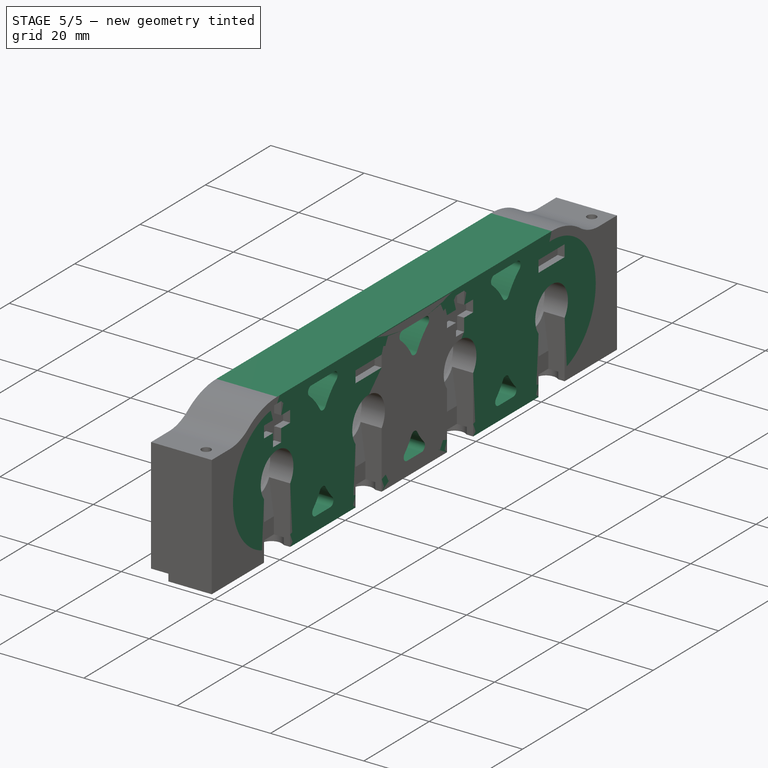
[diagram: stage 5 of 5 — iso view after this stage's code; geometry added in this stage tinted green]
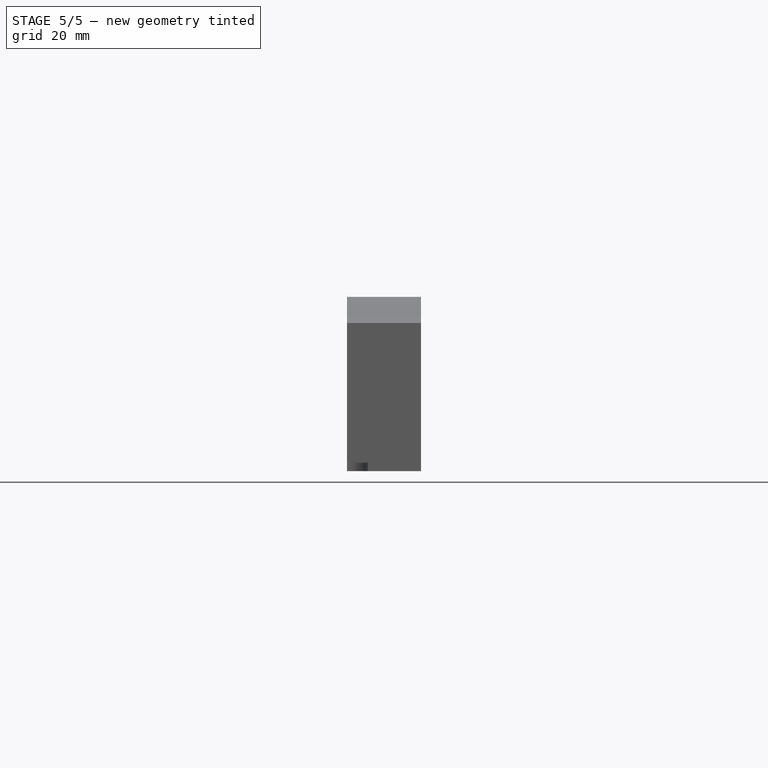
[diagram: stage 5 of 5 — front view after this stage's code; geometry added in this stage tinted green]
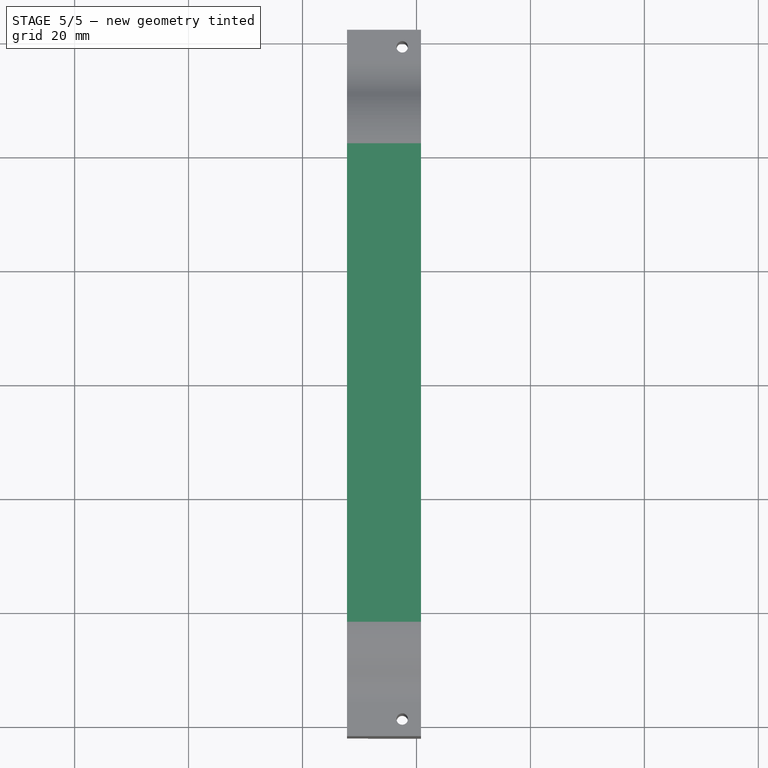
[diagram: stage 5 of 5 — top view after this stage's code; geometry added in this stage tinted green]
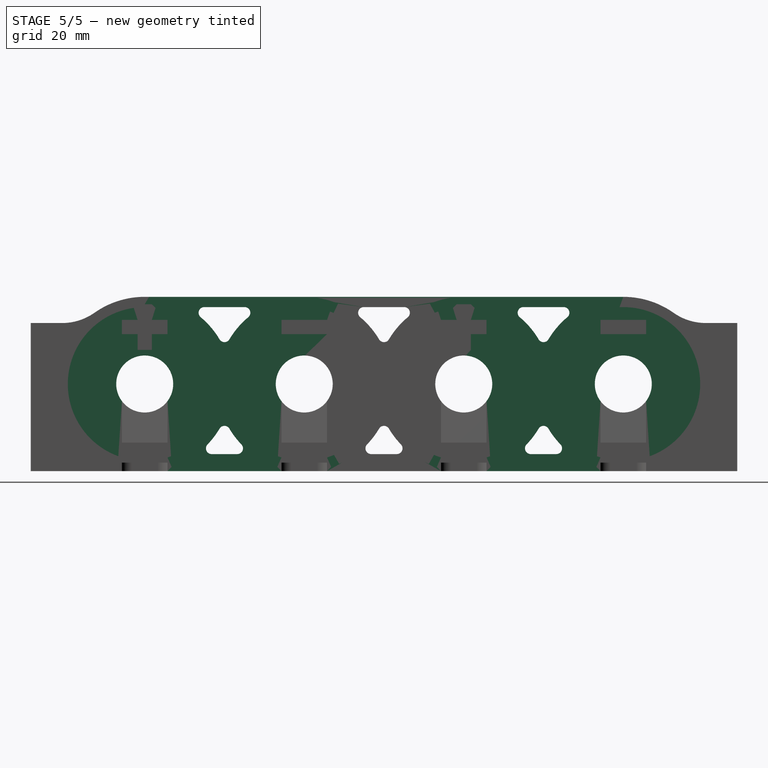
[diagram: stage 5 of 5 — right view after this stage's code; geometry added in this stage tinted green]
FEATURE [PartDesign::FeatureBase] BaseFeature
  BaseFeature = -> Revolve
  Suppressed = false
FEATURE [PartDesign::LinearPattern] LinearPattern
  BaseFeature = -> BaseFeature
  Direction = -> Y_Axis
  Length = 84
  Mode = 1
  Occurrences = 4
  Offset = 28
  Suppressed = false
  TransformMode = 1
  expr: Occurrences = <<Param>>.Cell_nof
  expr: Offset = <<Param>>.Cell_diameter + <<Param>>.Cell_spacing
FEATURE [Part::MultiFuse] Fusion001  label="Holder_Fusion"
  Shapes = -> [Body,Body002,Extrude002,Extrude004]
FEATURE [Part::Cut] Cut  label="Holder_Cut"
  Base = -> Fusion001
  Tool = -> Fusion002
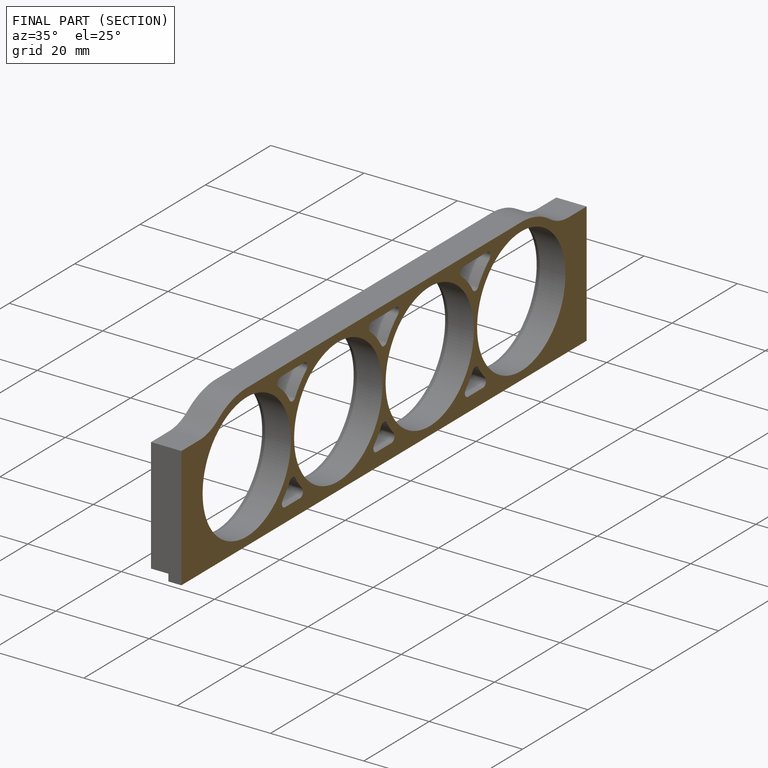
[diagram: finished part — half-section view (interior)]
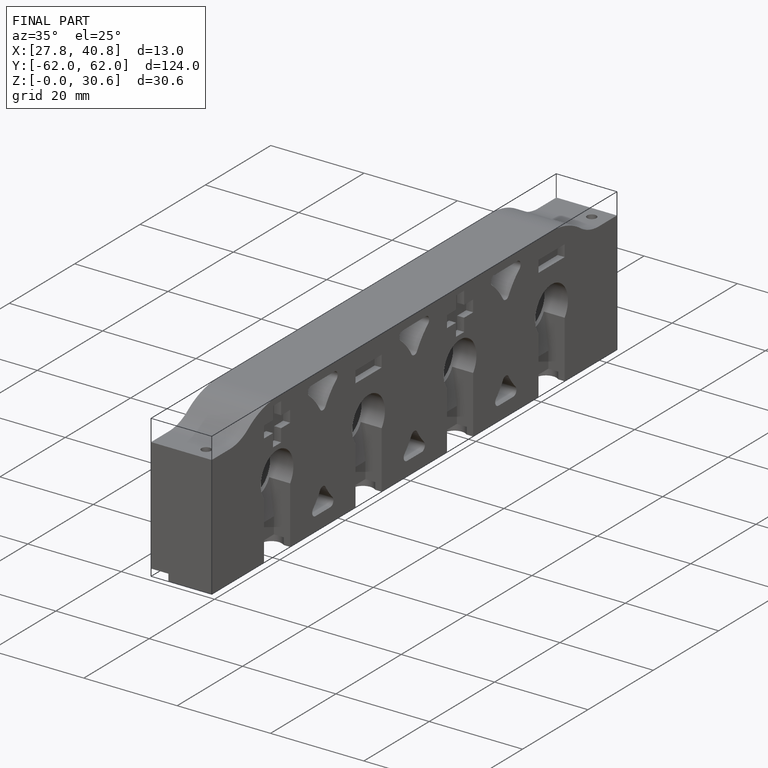
[diagram: finished part — iso view with bounding-box wireframe]
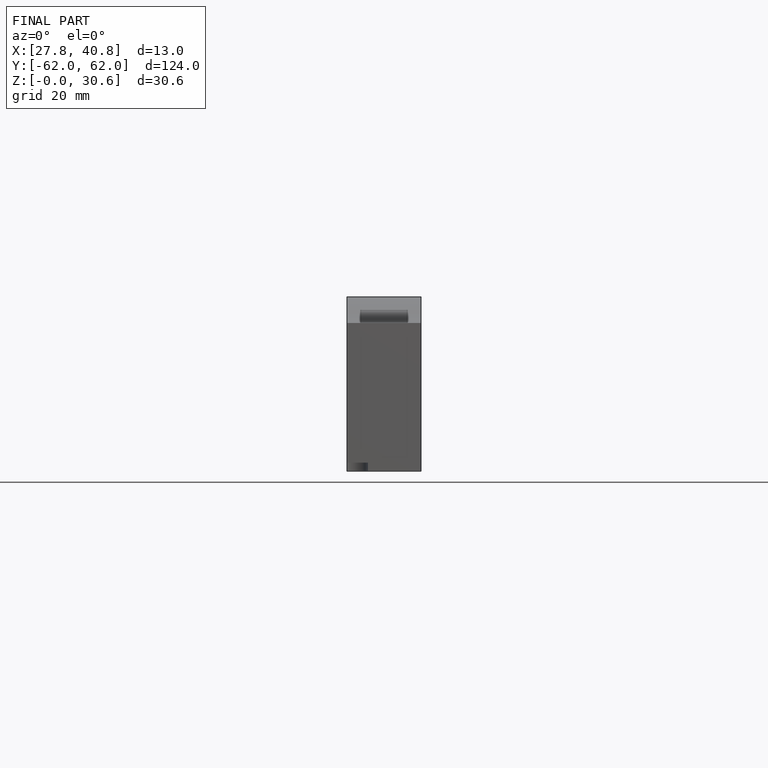
[diagram: finished part — front view with bounding-box wireframe]
